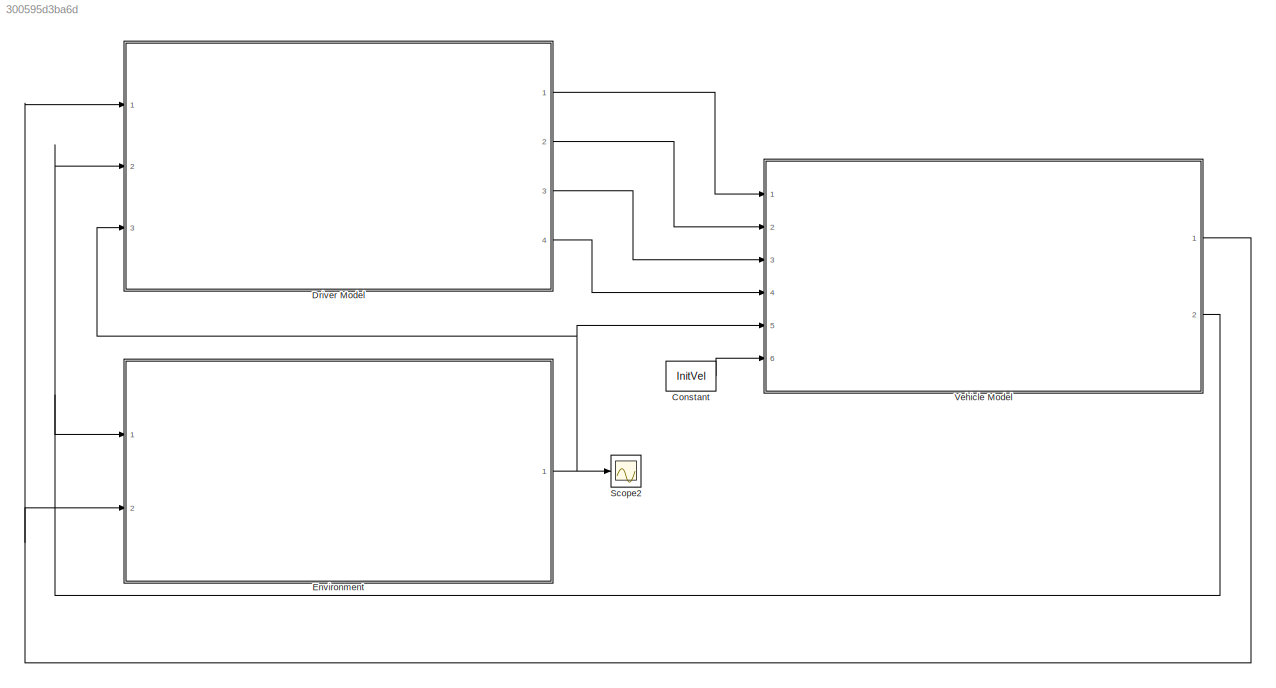
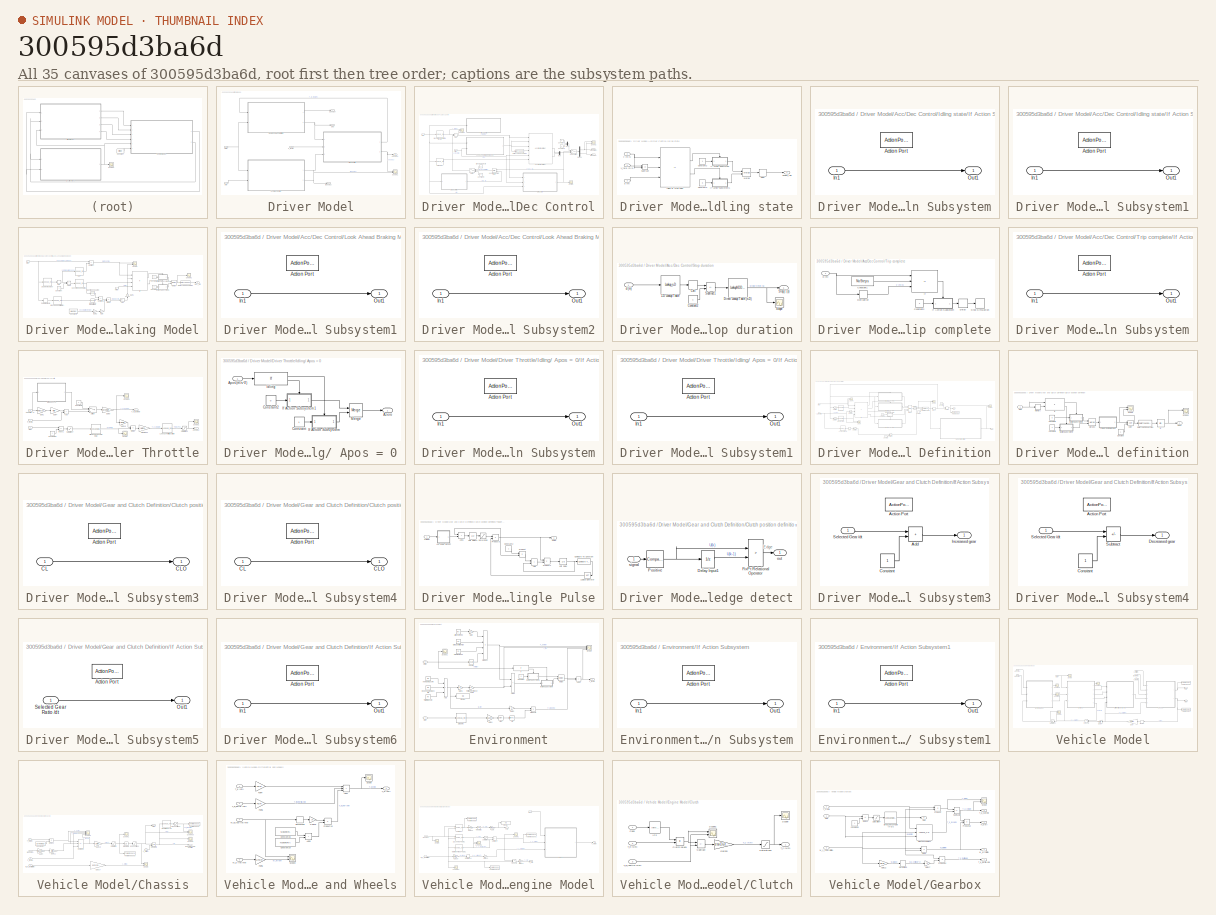
[diagram: thumbnail index - all 35 canvases of the model, root first then tree order]
MODEL slx_300595d3ba6d
KIND model
CONFIG AbsTol = auto
CONFIG EnableMultiTasking = off
CONFIG FixedStep = 0.1
CONFIG MaxStep = auto
CONFIG MinStep = auto
CONFIG RelTol = 1e-3
CONFIG SampleTimeConstraint = Unconstrained
CONFIG SolverName = FixedStepAuto
CONFIG StartTime = 0.0
CONFIG StopTime = 500
BLOCK [Constant] Constant
  Value = InitVel
BLOCK [SubSystem] Driver Model
  Ports = [3, 4]
  RequestExecContextInheritance = off
BLOCK [SubSystem] Driver Model/Acc//Dec Control
  Ports = [2, 2]
  RequestExecContextInheritance = off
BLOCK [Sum] Driver Model/Acc//Dec Control/Add
  IconShape = rectangular
  Ports = [2, 1]
BLOCK [Outport] Driver Model/Acc//Dec Control/Apos(m//s^2)
BLOCK [Outport] Driver Model/Acc//Dec Control/Bpos (0-1)
  Port = 2
BLOCK [Constant] Driver Model/Acc//Dec Control/Constant
  Value = 0
BLOCK [Constant] Driver Model/Acc//Dec Control/Constant1
  Value = 0
BLOCK [Constant] Driver Model/Acc//Dec Control/Constant4
  NameLocation = top
  Value = 0
BLOCK [Constant] Driver Model/Acc//Dec Control/Creeping Velocity
  NameLocation = top
  Value = 5
BLOCK [DataTypeConversion] Driver Model/Acc//Dec Control/Data Type Conversion
  OutDataTypeStr = double
  RndMeth = Floor
  SaturateOnIntegerOverflow = off
BLOCK [Demux] Driver Model/Acc//Dec Control/Demux
  Outputs = 2
  Ports = [1, 2]
BLOCK [Switch] Driver Model/Acc//Dec Control/Engine Idling
  Criteria = u2 > Threshold
  InputSameDT = off
  SaturateOnIntegerOverflow = off
BLOCK [Lookup_n-D] Driver Model/Acc//Dec Control/Generated Operating Cycle
  BreakpointsForDimension1 = Dist
  BreakpointsForDimension2 = G1Inprpm
  InputPortMap = u0
  InternalRulePriority = Speed
  InterpMethod = Linear Lagrange
  NumberOfTableDimensions = 1
  Ports = [1, 1]
  RndMeth = Simplest
  Table = MaxSpeedProfile
BLOCK [SubSystem] Driver Model/Acc//Dec Control/Idling state
  Ports = [3, 1]
  RequestExecContextInheritance = off
BLOCK [Constant] Driver Model/Acc//Dec Control/Idling state/Constant2
BLOCK [Constant] Driver Model/Acc//Dec Control/Idling state/Constant3
  Value = 0
BLOCK [Delay] Driver Model/Acc//Dec Control/Idling state/Delay
  DelayLength = 1
  InputPortMap = u0
  Ports = [1, 1]
BLOCK [Outport] Driver Model/Acc//Dec Control/Idling state/Engine_Idle
BLOCK [If] Driver Model/Acc//Dec Control/Idling state/Idling at stop point
  IfExpression = u1 == 0 & u2 < 0 & u3 > 10
  NumInputs = 3
  Ports = [3, 2]
BLOCK [SubSystem] Driver Model/Acc//Dec Control/Idling state/If Action Subsystem
  Ports = [1, 1, 0, 0, 0, 0, 0, 1]
  RequestExecContextInheritance = off
  TreatAsAtomicUnit = on
BLOCK [ActionPort] Driver Model/Acc//Dec Control/Idling state/If Action Subsystem/Action Port
  ActionPortLabel = if(u1 == 0 & u2 < 0 & u3 > 10)
BLOCK [Inport] Driver Model/Acc//Dec Control/Idling state/If Action Subsystem/In1
BLOCK [Outport] Driver Model/Acc//Dec Control/Idling state/If Action Subsystem/Out1
BLOCK [SubSystem] Driver Model/Acc//Dec Control/Idling state/If Action Subsystem1
  Ports = [1, 1, 0, 0, 0, 0, 0, 1]
  RequestExecContextInheritance = off
  TreatAsAtomicUnit = on
BLOCK [ActionPort] Driver Model/Acc//Dec Control/Idling state/If Action Subsystem1/Action Port
  ActionPortLabel = else
BLOCK [Inport] Driver Model/Acc//Dec Control/Idling state/If Action Subsystem1/In1
BLOCK [Outport] Driver Model/Acc//Dec Control/Idling state/If Action Subsystem1/Out1
BLOCK [Merge] Driver Model/Acc//Dec Control/Idling state/Merge
  Ports = [2, 1]
BLOCK [Sum] Driver Model/Acc//Dec Control/Idling state/Subtract
  IconShape = rectangular
  Inputs = +-
  Ports = [2, 1]
BLOCK [Inport] Driver Model/Acc//Dec Control/Idling state/d (m)
  Port = 3
BLOCK [Inport] Driver Model/Acc//Dec Control/Idling state/v (m//s)
  Port = 2
BLOCK [Inport] Driver Model/Acc//Dec Control/Idling state/v_targ (m//s)
BLOCK [Reference] Driver Model/Acc//Dec Control/Longitudinal Driver  REF=autolibshared/Longitudinal Driver
  Ports = [6, 3]
  SourceBlock = autolibshared/Longitudinal Driver
  SourceProductBaseCode = PW,MT,UV,VE,VP
  SourceType = Longitudinal Driver
BLOCK [SubSystem] Driver Model/Acc//Dec Control/Look Ahead Braking Model
  Ports = [2, 1]
  RequestExecContextInheritance = off
BLOCK [Abs] Driver Model/Acc//Dec Control/Look Ahead Braking Model/Abs
  SaturateOnIntegerOverflow = off
BLOCK [Sum] Driver Model/Acc//Dec Control/Look Ahead Braking Model/Add3
  IconShape = rectangular
  Ports = [2, 1]
BLOCK [Rounding] Driver Model/Acc//Dec Control/Look Ahead Braking Model/Ceil
  Operator = ceil
BLOCK [Constant] Driver Model/Acc//Dec Control/Look Ahead Braking Model/Constant
BLOCK [Constant] Driver Model/Acc//Dec Control/Look Ahead Braking Model/Constant1
  Value = 0
BLOCK [Constant] Driver Model/Acc//Dec Control/Look Ahead Braking Model/Constant2
BLOCK [Constant] Driver Model/Acc//Dec Control/Look Ahead Braking Model/Constant4
  Value = MaxDec
BLOCK [DataTypeConversion] Driver Model/Acc//Dec Control/Look Ahead Braking Model/Data Type Conversion
  OutDataTypeStr = boolean
  RndMeth = Floor
  SaturateOnIntegerOverflow = off
BLOCK [Outport] Driver Model/Acc//Dec Control/Look Ahead Braking Model/Dec_OR
BLOCK [Product] Driver Model/Acc//Dec Control/Look Ahead Braking Model/Divide
  Inputs = */
  Ports = [2, 1]
BLOCK [Gain] Driver Model/Acc//Dec Control/Look Ahead Braking Model/Gain
  Gain = 2
BLOCK [Gain] Driver Model/Acc//Dec Control/Look Ahead Braking Model/Gain1
  Gain = 1.01
  NameLocation = right
BLOCK [Gain] Driver Model/Acc//Dec Control/Look Ahead Braking Model/Gain2
  Gain = -1
BLOCK [SubSystem] Driver Model/Acc//Dec Control/Look Ahead Braking Model/If Action Subsystem1
  Ports = [1, 1, 0, 0, 0, 0, 0, 1]
  RequestExecContextInheritance = off
  TreatAsAtomicUnit = on
BLOCK [ActionPort] Driver Model/Acc//Dec Control/Look Ahead Braking Model/If Action Subsystem1/Action Port
  ActionPortLabel = else
BLOCK [Inport] Driver Model/Acc//Dec Control/Look Ahead Braking Model/If Action Subsystem1/In1
BLOCK [Outport] Driver Model/Acc//Dec Control/Look Ahead Braking Model/If Action Subsystem1/Out1
BLOCK [SubSystem] Driver Model/Acc//Dec Control/Look Ahead Braking Model/If Action Subsystem2
  Ports = [1, 1, 0, 0, 0, 0, 0, 1]
  RequestExecContextInheritance = off
  TreatAsAtomicUnit = on
BLOCK [ActionPort] Driver Model/Acc//Dec Control/Look Ahead Braking Model/If Action Subsystem2/Action Port
  ActionPortLabel = if(u1 <= u2 & u4 > u3)
BLOCK [Inport] Driver Model/Acc//Dec Control/Look Ahead Braking Model/If Action Subsystem2/In1
BLOCK [Outport] Driver Model/Acc//Dec Control/Look Ahead Braking Model/If Action Subsystem2/Out1
BLOCK [If] Driver Model/Acc//Dec Control/Look Ahead Braking Model/If1
  IfExpression = u1 <= u2 & u4 > u3
  NumInputs = 4
  Ports = [4, 2]
BLOCK [Math] Driver Model/Acc//Dec Control/Look Ahead Braking Model/Magnitude Squared
  Operator = square
  Ports = [1, 1]
BLOCK [Math] Driver Model/Acc//Dec Control/Look Ahead Braking Model/Magnitude Squared1
  Operator = square
  Ports = [1, 1]
BLOCK [Lookup_n-D] Driver Model/Acc//Dec Control/Look Ahead Braking Model/Max Speed Profile (m//s)
  BreakpointsForDimension1 = Dist
  BreakpointsForDimension2 = G1Inprpm
  InputPortMap = u0
  InternalRulePriority = Speed
  InterpMethod = Linear Lagrange
  NumberOfTableDimensions = 1
  Ports = [1, 1]
  RndMeth = Simplest
  Table = MaxSpeedProfile
BLOCK [Merge] Driver Model/Acc//Dec Control/Look Ahead Braking Model/Merge
  Ports = [2, 1]
BLOCK [Lookup_n-D] Driver Model/Acc//Dec Control/Look Ahead Braking Model/SCP
  BreakpointsForDimension1 = SegNo
  BreakpointsForDimension2 = G1Inprpm
  InputPortMap = u0
  InternalRulePriority = Speed
  InterpMethod = Linear Lagrange
  NumberOfTableDimensions = 1
  Ports = [1, 1]
  RndMeth = Simplest
  Table = CovDist
BLOCK [Scope] Driver Model/Acc//Dec Control/Look Ahead Braking Model/Scope
  Floating = off
  NumInputPorts = 2
  Ports = [2]
  ScopeSpecificationString = Simulink.scopes.TimeScopeBlockCfg('CurrentConfiguration', extmgr.ConfigurationSet(extmgr.Configuration('Core','General UI',true),extmgr.Configuration('Core','Source UI',true),extmgr.Configuration('Sources','WiredSimulink',true,'DataLoggingVariableName','ScopeData3'),extmgr.Configuration('Visuals','Time Domain',true,'SerializedDisplays',{struct('MinYLimReal','-187.49386','MaxYLimReal','1687.44478',...<+1470ch>
BLOCK [Scope] Driver Model/Acc//Dec Control/Look Ahead Braking Model/Scope2
  Floating = off
  NumInputPorts = 1
  Ports = [1]
  ScopeSpecificationString = Simulink.scopes.TimeScopeBlockCfg('CurrentConfiguration', extmgr.ConfigurationSet(extmgr.Configuration('Core','General UI',true),extmgr.Configuration('Core','Source UI',true),extmgr.Configuration('Sources','WiredSimulink',true,'DataLoggingVariableName','ScopeData33'),extmgr.Configuration('Visuals','Time Domain',true,'SerializedDisplays',{struct('MinYLimReal','-0.09268','MaxYLimReal','1.05143','YLa...<+1436ch>
BLOCK [Lookup_n-D] Driver Model/Acc//Dec Control/Look Ahead Braking Model/Segment number
  BreakpointsForDimension1 = CovDist
  BreakpointsForDimension2 = G1Inprpm
  InputPortMap = u0
  InternalRulePriority = Speed
  InterpMethod = Linear Lagrange
  NumberOfTableDimensions = 1
  Ports = [1, 1]
  RndMeth = Simplest
  Table = SegNo
BLOCK [Sum] Driver Model/Acc//Dec Control/Look Ahead Braking Model/Subtract
  IconShape = rectangular
  Inputs = -+
  Ports = [2, 1]
BLOCK [Sum] Driver Model/Acc//Dec Control/Look Ahead Braking Model/Subtract1
  IconShape = rectangular
  Inputs = +-
  Ports = [2, 1]
BLOCK [ZeroOrderHold] Driver Model/Acc//Dec Control/Look Ahead Braking Model/Zero-Order Hold
  SampleTime = -1
BLOCK [Inport] Driver Model/Acc//Dec Control/Look Ahead Braking Model/d (m)
BLOCK [Lookup_n-D] Driver Model/Acc//Dec Control/Look Ahead Braking Model/upcoming speed (m//s)
  BreakpointsForDimension1 = SegNo
  BreakpointsForDimension2 = G1Inprpm
  InputPortMap = u0
  InternalRulePriority = Speed
  InterpMethod = Linear Lagrange
  NumberOfTableDimensions = 1
  Ports = [1, 1]
  RndMeth = Simplest
  Table = SegSPLatinmps
BLOCK [Inport] Driver Model/Acc//Dec Control/Look Ahead Braking Model/v (m//s)
  Port = 2
BLOCK [Mux] Driver Model/Acc//Dec Control/Mux
  DisplayOption = bar
  Inputs = 2
  Ports = [2, 1]
BLOCK [Mux] Driver Model/Acc//Dec Control/Mux1
  DisplayOption = bar
  Inputs = 2
  Ports = [2, 1]
BLOCK [Scope] Driver Model/Acc//Dec Control/Scope
  Floating = off
  NumInputPorts = 1
  Ports = [1]
  ScopeSpecificationString = Simulink.scopes.TimeScopeBlockCfg('CurrentConfiguration', extmgr.ConfigurationSet(extmgr.Configuration('Core','General UI',true),extmgr.Configuration('Core','Source UI',true),extmgr.Configuration('Sources','WiredSimulink',true,'DataLoggingVariableName','ScopeData2'),extmgr.Configuration('Visuals','Time Domain',true,'SerializedDisplays',{struct('MinYLimReal','-0.125','MaxYLimReal','1.125','YLabelRe...<+1429ch>
BLOCK [Scope] Driver Model/Acc//Dec Control/Scope1
  Floating = off
  NumInputPorts = 2
  Ports = [2]
  ScopeSpecificationString = Simulink.scopes.TimeScopeBlockCfg('CurrentConfiguration', extmgr.ConfigurationSet(extmgr.Configuration('Core','General UI',true),extmgr.Configuration('Core','Source UI',true),extmgr.Configuration('Sources','WiredSimulink',true,'DataLoggingVariableName','ScopeData1'),extmgr.Configuration('Visuals','Time Domain',true,'SerializedDisplays',{struct('MinYLimReal','-0.125','MaxYLimReal','1.125','YLabelRe...<+1482ch>
BLOCK [Scope] Driver Model/Acc//Dec Control/Scope2
  Floating = off
  NumInputPorts = 2
  Ports = [2]
  ScopeSpecificationString = Simulink.scopes.TimeScopeBlockCfg('CurrentConfiguration', extmgr.ConfigurationSet(extmgr.Configuration('Core','General UI',true),extmgr.Configuration('Core','Source UI',true),extmgr.Configuration('Sources','WiredSimulink',true,'DataLoggingVariableName','ScopeData1'),extmgr.Configuration('Visuals','Time Domain',true,'SerializedDisplays',{struct('MinYLimReal','13.66293','MaxYLimReal','16.06226','YLa...<+1506ch>
BLOCK [Lookup_n-D] Driver Model/Acc//Dec Control/Slope (%)
  BreakpointsForDimension1 = Dist
  InputPortMap = u0
  InternalRulePriority = Speed
  NumberOfTableDimensions = 1
  Ports = [1, 1]
  RndMeth = Simplest
  Table = IntpSlope
BLOCK [SubSystem] Driver Model/Acc//Dec Control/Stop duration
  Ports = [1, 1]
  RequestExecContextInheritance = off
BLOCK [Lookup_n-D] Driver Model/Acc//Dec Control/Stop duration/1-D Lookup Table
  BreakpointsForDimension1 = Stoptimes(:,1)
  InputPortMap = u0
  InternalRulePriority = Speed
  NumberOfTableDimensions = 1
  Ports = [1, 1]
  RndMeth = Simplest
  Table = 1:length(Stoptimes)
BLOCK [Rounding] Driver Model/Acc//Dec Control/Stop duration/Ceil
  Operator = ceil
BLOCK [Constant] Driver Model/Acc//Dec Control/Stop duration/Constant2
BLOCK [LookupNDDirect] Driver Model/Acc//Dec Control/Stop duration/Direct Lookup Table (n-D)
  NumberOfTableDimensions = 1
  Ports = [1, 1]
  Table = Stoptimes(:,2)
BLOCK [Scope] Driver Model/Acc//Dec Control/Stop duration/Scope
  Floating = off
  NumInputPorts = 1
  Ports = [1]
  ScopeSpecificationString = Simulink.scopes.TimeScopeBlockCfg('CurrentConfiguration', extmgr.ConfigurationSet(extmgr.Configuration('Core','General UI',true),extmgr.Configuration('Core','Source UI',true),extmgr.Configuration('Sources','WiredSimulink',true,'DataLoggingVariableName','ScopeData1'),extmgr.Configuration('Visuals','Time Domain',true,'SerializedDisplays',{struct('MinYLimReal','4.00000','MaxYLimReal','6.00000','YLabe...<+1399ch>
BLOCK [Outport] Driver Model/Acc//Dec Control/Stop duration/Stop_t (s)
BLOCK [Sum] Driver Model/Acc//Dec Control/Stop duration/Subtract1
  IconShape = rectangular
  Inputs = +-
  Ports = [2, 1]
BLOCK [Inport] Driver Model/Acc//Dec Control/Stop duration/d (m)
BLOCK [Switch] Driver Model/Acc//Dec Control/Switch
  Criteria = u2 > Threshold
  InputSameDT = off
  NameLocation = top
  SaturateOnIntegerOverflow = off
BLOCK [SubSystem] Driver Model/Acc//Dec Control/Trip complete
  Ports = [1]
  RequestExecContextInheritance = off
BLOCK [Constant] Driver Model/Acc//Dec Control/Trip complete/Constant1
  Value = NoSteps
BLOCK [Constant] Driver Model/Acc//Dec Control/Trip complete/Constant2
BLOCK [Delay] Driver Model/Acc//Dec Control/Trip complete/Delay
  DelayLength = 1
  InputPortMap = u0
  Ports = [1, 1]
BLOCK [Derivative] Driver Model/Acc//Dec Control/Trip complete/Derivative
BLOCK [If] Driver Model/Acc//Dec Control/Trip complete/If
  IfExpression = u1 > u2 & u3 ==0
  NumInputs = 3
  Ports = [3, 1]
  ShowElse = off
BLOCK [SubSystem] Driver Model/Acc//Dec Control/Trip complete/If Action Subsystem
  Ports = [1, 1, 0, 0, 0, 0, 0, 1]
  RequestExecContextInheritance = off
  TreatAsAtomicUnit = on
BLOCK [ActionPort] Driver Model/Acc//Dec Control/Trip complete/If Action Subsystem/Action Port
  ActionPortLabel = if(u1 > u2 & u3 ==0)
BLOCK [Inport] Driver Model/Acc//Dec Control/Trip complete/If Action Subsystem/In1
BLOCK [Outport] Driver Model/Acc//Dec Control/Trip complete/If Action Subsystem/Out1
BLOCK [Stop] Driver Model/Acc//Dec Control/Trip complete/Stop Simulation
BLOCK [Inport] Driver Model/Acc//Dec Control/Trip complete/d (m)
BLOCK [VariableTransportDelay] Driver Model/Acc//Dec Control/Vehicle temporary stop
  MaximumDelay = 10
  Ports = [2, 1]
  VariableDelayType = Variable transport delay
BLOCK [Inport] Driver Model/Acc//Dec Control/d (m)
  Port = 2
BLOCK [Inport] Driver Model/Acc//Dec Control/v (m//s)
BLOCK [Outport] Driver Model/Apos(0-1)
  Port = 3
BLOCK [Outport] Driver Model/Bpos (0-1)
  Port = 4
BLOCK [Outport] Driver Model/Cpos (1-0)
BLOCK [SubSystem] Driver Model/Driver Throttle
  Ports = [3, 2]
  RequestExecContextInheritance = off
BLOCK [Sum] Driver Model/Driver Throttle/Add
  IconShape = rectangular
  Ports = [2, 1]
BLOCK [Outport] Driver Model/Driver Throttle/Apos (0-1)
  Port = 2
BLOCK [Inport] Driver Model/Driver Throttle/Apos(m//s^2)
  Port = 3
BLOCK [Constant] Driver Model/Driver Throttle/Constant1
  Value = 0
BLOCK [Constant] Driver Model/Driver Throttle/Constant20
BLOCK [LookupNDDirect] Driver Model/Driver Throttle/Direct Lookup Table (n-D)2
  NumberOfTableDimensions = 1
  Ports = [1, 1]
  Table = GRa
BLOCK [Product] Driver Model/Driver Throttle/Divide
  Inputs = */
  Ports = [2, 1]
BLOCK [Inport] Driver Model/Driver Throttle/F_res (N)
  Port = 2
BLOCK [Inport] Driver Model/Driver Throttle/GNo
BLOCK [Gain] Driver Model/Driver Throttle/Gain1
  Gain = MaxAcc
BLOCK [Gain] Driver Model/Driver Throttle/Gain10
  Gain = 1/FDR
BLOCK [Gain] Driver Model/Driver Throttle/Gain4
  Gain = Mtot
BLOCK [Gain] Driver Model/Driver Throttle/Gain9
  Gain = DynRolRad
BLOCK [SubSystem] Driver Model/Driver Throttle/Idling// Apos = 0
  Ports = [1, 1]
  RequestExecContextInheritance = off
BLOCK [Inport] Driver Model/Driver Throttle/Idling// Apos = 0/Apos(m//s^2)
BLOCK [Outport] Driver Model/Driver Throttle/Idling// Apos = 0/Azero
BLOCK [Constant] Driver Model/Driver Throttle/Idling// Apos = 0/Constant
BLOCK [Constant] Driver Model/Driver Throttle/Idling// Apos = 0/Constant2
  Value = 0
BLOCK [If] Driver Model/Driver Throttle/Idling// Apos = 0/Idling
  IfExpression = u1 == 0
  Ports = [1, 2]
BLOCK [SubSystem] Driver Model/Driver Throttle/Idling// Apos = 0/If Action Subsystem
  Ports = [1, 1, 0, 0, 0, 0, 0, 1]
  RequestExecContextInheritance = off
  TreatAsAtomicUnit = on
BLOCK [ActionPort] Driver Model/Driver Throttle/Idling// Apos = 0/If Action Subsystem/Action Port
  ActionPortLabel = if(u1 == 0)
BLOCK [Inport] Driver Model/Driver Throttle/Idling// Apos = 0/If Action Subsystem/In1
BLOCK [Outport] Driver Model/Driver Throttle/Idling// Apos = 0/If Action Subsystem/Out1
BLOCK [SubSystem] Driver Model/Driver Throttle/Idling// Apos = 0/If Action Subsystem1
  Ports = [1, 1, 0, 0, 0, 0, 0, 1]
  RequestExecContextInheritance = off
  TreatAsAtomicUnit = on
BLOCK [ActionPort] Driver Model/Driver Throttle/Idling// Apos = 0/If Action Subsystem1/Action Port
  ActionPortLabel = else
BLOCK [Inport] Driver Model/Driver Throttle/Idling// Apos = 0/If Action Subsystem1/In1
BLOCK [Outport] Driver Model/Driver Throttle/Idling// Apos = 0/If Action Subsystem1/Out1
BLOCK [Merge] Driver Model/Driver Throttle/Idling// Apos = 0/Merge
  Ports = [2, 1]
BLOCK [Sum] Driver Model/Driver Throttle/Index1
  IconShape = rectangular
  Inputs = +-
  Ports = [2, 1]
BLOCK [Lookup_n-D] Driver Model/Driver Throttle/Lookup Throttle position
  BreakpointsForDimension1 = MaxTorValThrot
  InputPortMap = u0
  InternalRulePriority = Speed
  NumberOfTableDimensions = 1
  Ports = [1, 1]
  RndMeth = Simplest
  Table = ThrotPos
BLOCK [Saturate] Driver Model/Driver Throttle/Saturation2
  LowerLimit = 0
  UpperLimit = 1
BLOCK [Saturate] Driver Model/Driver Throttle/Saturation7
  LowerLimit = 0
  UpperLimit = inf
BLOCK [Scope] Driver Model/Driver Throttle/Scope
  Floating = off
  NumInputPorts = 1
  Ports = [1]
  ScopeSpecificationString = Simulink.scopes.TimeScopeBlockCfg('CurrentConfiguration', extmgr.ConfigurationSet(extmgr.Configuration('Core','General UI',true),extmgr.Configuration('Core','Source UI',true),extmgr.Configuration('Sources','WiredSimulink',true,'DataLoggingVariableName','ScopeData6'),extmgr.Configuration('Visuals','Time Domain',true,'SerializedDisplays',{struct('MinYLimReal','0.8275','MaxYLimReal','7.3525','YLabelR...<+1386ch>
BLOCK [Scope] Driver Model/Driver Throttle/Scope1
  Floating = off
  NumInputPorts = 1
  Ports = [1]
  ScopeSpecificationString = Simulink.scopes.TimeScopeBlockCfg('CurrentConfiguration', extmgr.ConfigurationSet(extmgr.Configuration('Core','General UI',true),extmgr.Configuration('Core','Source UI',true),extmgr.Configuration('Sources','WiredSimulink',true,'DataLoggingVariableName','ScopeData5'),extmgr.Configuration('Visuals','Time Domain',true,'SerializedDisplays',{struct('MinYLimReal','-0.02647','MaxYLimReal','1.03368','YLab...<+1416ch>
BLOCK [Scope] Driver Model/Driver Throttle/Scope3
  Floating = off
  NumInputPorts = 1
  Ports = [1]
  ScopeSpecificationString = Simulink.scopes.TimeScopeBlockCfg('CurrentConfiguration', extmgr.ConfigurationSet(extmgr.Configuration('Core','General UI',true),extmgr.Configuration('Core','Source UI',true),extmgr.Configuration('Sources','WiredSimulink',true,'DataLoggingVariableName','ScopeData5'),extmgr.Configuration('Visuals','Time Domain',true,'SerializedDisplays',{struct('MinYLimReal','-324.92281','MaxYLimReal','2924.30529',...<+1416ch>
BLOCK [Switch] Driver Model/Driver Throttle/Switch
  Criteria = u2 > Threshold
  InputSameDT = off
  SaturateOnIntegerOverflow = off
BLOCK [Outport] Driver Model/Driver Throttle/T_w_req (Nm)
BLOCK [Gain] Driver Model/Driver Throttle/etaClutch2
  Gain = 1/etaClutch
BLOCK [Inport] Driver Model/F_res (N)
  Port = 3
BLOCK [Outport] Driver Model/GNo
  Port = 2
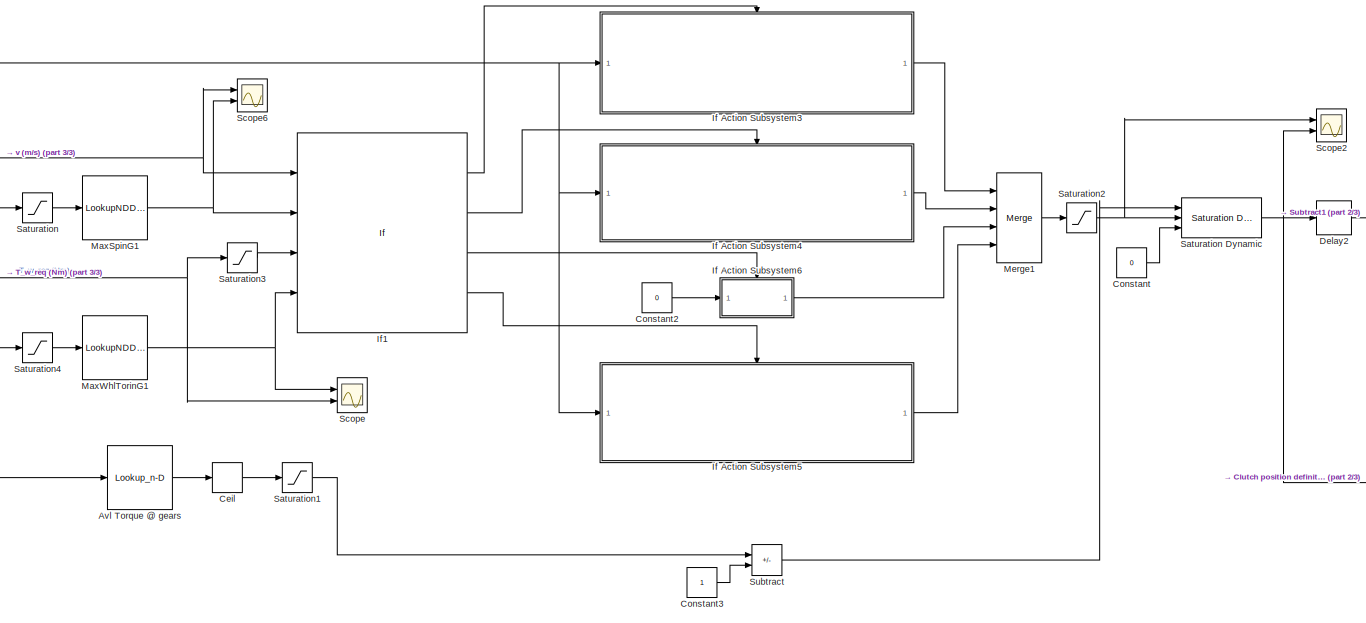
[diagram: Driver Model/Gear and Clutch Definition - part 1/3, center side, full height]
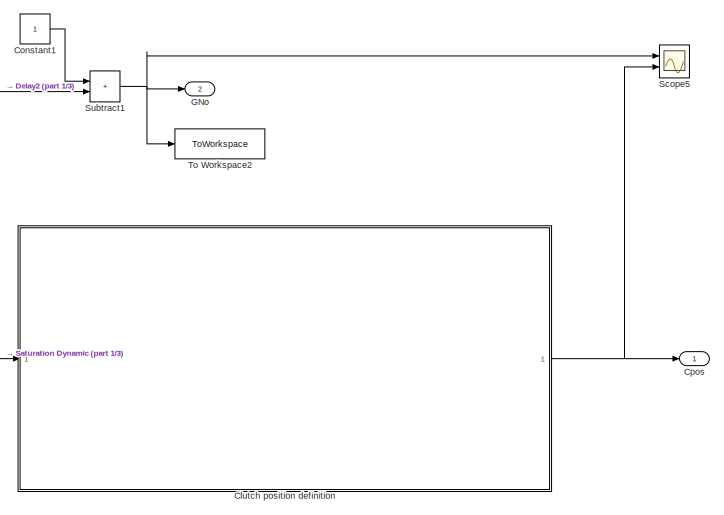
[diagram: Driver Model/Gear and Clutch Definition - part 2/3, middle right region]
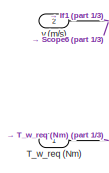
[diagram: Driver Model/Gear and Clutch Definition - part 3/3, middle left region]
BLOCK [SubSystem] Driver Model/Gear and Clutch Definition
  Ports = [2, 2]
  RequestExecContextInheritance = off
BLOCK [Lookup_n-D] Driver Model/Gear and Clutch Definition/Avl Torque @ gears
  BreakpointsForDimension1 = flip(MaxWhlTorinG)
  InputPortMap = u0
  InternalRulePriority = Speed
  NumberOfTableDimensions = 1
  Ports = [1, 1]
  RndMeth = Simplest
  Table = flip(GNo)
BLOCK [Rounding] Driver Model/Gear and Clutch Definition/Ceil
  Operator = ceil
BLOCK [SubSystem] Driver Model/Gear and Clutch Definition/Clutch position definition
  Ports = [1, 1]
  RequestExecContextInheritance = off
BLOCK [Constant] Driver Model/Gear and Clutch Definition/Clutch position definition/Constant
BLOCK [Constant] Driver Model/Gear and Clutch Definition/Clutch position definition/Constant2
  Value = 0
BLOCK [Constant] Driver Model/Gear and Clutch Definition/Clutch position definition/Constant3
BLOCK [Outport] Driver Model/Gear and Clutch Definition/Clutch position definition/Cpos
BLOCK [DataTypeConversion] Driver Model/Gear and Clutch Definition/Clutch position definition/Data Type Conversion
  OutDataTypeStr = double
  RndMeth = Floor
  SaturateOnIntegerOverflow = off
BLOCK [Inport] Driver Model/Gear and Clutch Definition/Clutch position definition/GNo
BLOCK [InitialCondition] Driver Model/Gear and Clutch Definition/Clutch position definition/IC
  Value = 0
BLOCK [SubSystem] Driver Model/Gear and Clutch Definition/Clutch position definition/If Action Subsystem3
  Ports = [1, 1, 0, 0, 0, 0, 0, 1]
  RequestExecContextInheritance = off
  TreatAsAtomicUnit = on
BLOCK [ActionPort] Driver Model/Gear and Clutch Definition/Clutch position definition/If Action Subsystem3/Action Port
  ActionPortLabel = if(u1 == u2)
BLOCK [Inport] Driver Model/Gear and Clutch Definition/Clutch position definition/If Action Subsystem3/CL
BLOCK [Outport] Driver Model/Gear and Clutch Definition/Clutch position definition/If Action Subsystem3/CLO
BLOCK [SubSystem] Driver Model/Gear and Clutch Definition/Clutch position definition/If Action Subsystem4
  Ports = [1, 1, 0, 0, 0, 0, 0, 1]
  RequestExecContextInheritance = off
  TreatAsAtomicUnit = on
BLOCK [ActionPort] Driver Model/Gear and Clutch Definition/Clutch position definition/If Action Subsystem4/Action Port
  ActionPortLabel = else
BLOCK [Inport] Driver Model/Gear and Clutch Definition/Clutch position definition/If Action Subsystem4/CL
BLOCK [Outport] Driver Model/Gear and Clutch Definition/Clutch position definition/If Action Subsystem4/CLO
BLOCK [If] Driver Model/Gear and Clutch Definition/Clutch position definition/If1
  IfExpression = u1 == u2
  NumInputs = 2
  Ports = [2, 2]
BLOCK [Memory] Driver Model/Gear and Clutch Definition/Clutch position definition/Memory
BLOCK [Merge] Driver Model/Gear and Clutch Definition/Clutch position definition/Merge2
  Ports = [2, 1]
BLOCK [Scope] Driver Model/Gear and Clutch Definition/Clutch position definition/Scope
  Floating = off
  NumInputPorts = 2
  Ports = [2]
  ScopeSpecificationString = Simulink.scopes.TimeScopeBlockCfg('CurrentConfiguration', extmgr.ConfigurationSet(extmgr.Configuration('Core','General UI',true),extmgr.Configuration('Core','Source UI',true),extmgr.Configuration('Sources','WiredSimulink',true,'DataLoggingVariableName','ScopeData4'),extmgr.Configuration('Visuals','Time Domain',true,'SerializedDisplays',{struct('MinYLimReal','-0.125','MaxYLimReal','1.125','YLabelRe...<+1419ch>
BLOCK [Scope] Driver Model/Gear and Clutch Definition/Clutch position definition/Scope1
  Floating = off
  NumInputPorts = 2
  Ports = [2]
  ScopeSpecificationString = Simulink.scopes.TimeScopeBlockCfg('CurrentConfiguration', extmgr.ConfigurationSet(extmgr.Configuration('Core','General UI',true),extmgr.Configuration('Core','Source UI',true),extmgr.Configuration('Sources','WiredSimulink',true,'DataLoggingVariableName','ScopeData2'),extmgr.Configuration('Visuals','Time Domain',true,'SerializedDisplays',{struct('MinYLimReal','-0.07165','MaxYLimReal','1.01137','YLab...<+1491ch>
BLOCK [SubSystem] Driver Model/Gear and Clutch Definition/Clutch position definition/Triggered Single Pulse
  Ports = [1, 1]
  RequestExecContextInheritance = off
  TreatAsAtomicUnit = on
BLOCK [SubSystem] Driver Model/Gear and Clutch Definition/Clutch position definition/Triggered Single Pulse/+ve edge detect
  Ports = [1, 1]
  RequestExecContextInheritance = off
BLOCK [UnitDelay] Driver Model/Gear and Clutch Definition/Clutch position definition/Triggered Single Pulse/+ve edge detect/Delay Input1
  Description = Store in Global RAM
  DisableCoverage = on
  HasFrameUpgradeWarning = on
  SampleTime = -1
BLOCK [RelationalOperator] Driver Model/Gear and Clutch Definition/Clutch position definition/Triggered Single Pulse/+ve edge detect/FixPt Relational Operator
  InputSameDT = off
  Operator = >
  OutDataTypeStr = fixdt(0, 8)
  Ports = [2, 1]
  ZeroCross = off
BLOCK [Reference] Driver Model/Gear and Clutch Definition/Clutch position definition/Triggered Single Pulse/+ve edge detect/Positive  REF=simulink/Logic and Bit
Operations/Compare
To Zero
  Ports = [1, 1]
  SourceBlock = simulink/Logic and Bit\nOperations/Compare\nTo Zero
  SourceProductBaseCode = SL
  SourceType = Compare To Zero
BLOCK [Outport] Driver Model/Gear and Clutch Definition/Clutch position definition/Triggered Single Pulse/+ve edge detect/out
BLOCK [Inport] Driver Model/Gear and Clutch Definition/Clutch position definition/Triggered Single Pulse/+ve edge detect/signal
BLOCK [Sum] Driver Model/Gear and Clutch Definition/Clutch position definition/Triggered Single Pulse/Add
  IconShape = rectangular
  Ports = [2, 1]
BLOCK [Sum] Driver Model/Gear and Clutch Definition/Clutch position definition/Triggered Single Pulse/Add1
  IconShape = rectangular
  Ports = [2, 1]
BLOCK [Reference] Driver Model/Gear and Clutch Definition/Clutch position definition/Triggered Single Pulse/Compare To Constant  REF=simulink/Logic and Bit
Operations/Compare
To Constant
  Ports = [1, 1]
  SourceBlock = simulink/Logic and Bit\nOperations/Compare\nTo Constant
  SourceProductBaseCode = SL
  SourceType = Compare To Constant
BLOCK [Constant] Driver Model/Gear and Clutch Definition/Clutch position definition/Triggered Single Pulse/Constant2
BLOCK [Logic] Driver Model/Gear and Clutch Definition/Clutch position definition/Triggered Single Pulse/Logical Operator
  AllPortsSameDT = off
  Operator = NOT
  OutDataTypeStr = boolean
  Ports = [1, 1]
BLOCK [Product] Driver Model/Gear and Clutch Definition/Clutch position definition/Triggered Single Pulse/Product
  Ports = [2, 1]
  RndMeth = Zero
BLOCK [Product] Driver Model/Gear and Clutch Definition/Clutch position definition/Triggered Single Pulse/Product1
  Ports = [2, 1]
  RndMeth = Zero
BLOCK [Product] Driver Model/Gear and Clutch Definition/Clutch position definition/Triggered Single Pulse/Product3
  Ports = [2, 1]
  RndMeth = Zero
BLOCK [Outport] Driver Model/Gear and Clutch Definition/Clutch position definition/Triggered Single Pulse/Pulse
BLOCK [Saturate] Driver Model/Gear and Clutch Definition/Clutch position definition/Triggered Single Pulse/Saturation
  LowerLimit = 0
  UpperLimit = 1
BLOCK [Inport] Driver Model/Gear and Clutch Definition/Clutch position definition/Triggered Single Pulse/Trigger
BLOCK [UnitDelay] Driver Model/Gear and Clutch Definition/Clutch position definition/Triggered Single Pulse/Unit Delay
  HasFrameUpgradeWarning = on
  SampleTime = -1
BLOCK [UnitDelay] Driver Model/Gear and Clutch Definition/Clutch position definition/Triggered Single Pulse/Unit Delay1
  HasFrameUpgradeWarning = on
  SampleTime = -1
BLOCK [Logic] Driver Model/Gear and Clutch Definition/Clutch position definition/XOR
  AllPortsSameDT = off
  IconShape = distinctive
  Operator = XOR
  OutDataTypeStr = boolean
  Ports = [2, 1]
BLOCK [Constant] Driver Model/Gear and Clutch Definition/Constant
  Value = 0
BLOCK [Constant] Driver Model/Gear and Clutch Definition/Constant1
BLOCK [Constant] Driver Model/Gear and Clutch Definition/Constant2
  Value = 0
BLOCK [Constant] Driver Model/Gear and Clutch Definition/Constant3
BLOCK [Outport] Driver Model/Gear and Clutch Definition/Cpos
BLOCK [Delay] Driver Model/Gear and Clutch Definition/Delay2
  DelayLength = 1
  InputPortMap = u0
  Ports = [1, 1]
BLOCK [Outport] Driver Model/Gear and Clutch Definition/GNo
  Port = 2
BLOCK [SubSystem] Driver Model/Gear and Clutch Definition/If Action Subsystem3
  Ports = [1, 1, 0, 0, 0, 0, 0, 1]
  RequestExecContextInheritance = off
  TreatAsAtomicUnit = on
BLOCK [ActionPort] Driver Model/Gear and Clutch Definition/If Action Subsystem3/Action Port
  ActionPortLabel = if(u1 >= u2)
BLOCK [Sum] Driver Model/Gear and Clutch Definition/If Action Subsystem3/Add
  IconShape = rectangular
  Ports = [2, 1]
BLOCK [Constant] Driver Model/Gear and Clutch Definition/If Action Subsystem3/Constant
BLOCK [Outport] Driver Model/Gear and Clutch Definition/If Action Subsystem3/Increased gear
BLOCK [Inport] Driver Model/Gear and Clutch Definition/If Action Subsystem3/Selected Gear //dt
BLOCK [SubSystem] Driver Model/Gear and Clutch Definition/If Action Subsystem4
  Ports = [1, 1, 0, 0, 0, 0, 0, 1]
  RequestExecContextInheritance = off
  TreatAsAtomicUnit = on
BLOCK [ActionPort] Driver Model/Gear and Clutch Definition/If Action Subsystem4/Action Port
  ActionPortLabel = elseif(u3 >= u4)
BLOCK [Constant] Driver Model/Gear and Clutch Definition/If Action Subsystem4/Constant
BLOCK [Outport] Driver Model/Gear and Clutch Definition/If Action Subsystem4/Decreased gear
BLOCK [Inport] Driver Model/Gear and Clutch Definition/If Action Subsystem4/Selected Gear //dt
BLOCK [Sum] Driver Model/Gear and Clutch Definition/If Action Subsystem4/Subtract
  IconShape = rectangular
  Inputs = +-
  Ports = [2, 1]
BLOCK [SubSystem] Driver Model/Gear and Clutch Definition/If Action Subsystem5
  Ports = [1, 1, 0, 0, 0, 0, 0, 1]
  RequestExecContextInheritance = off
  TreatAsAtomicUnit = on
BLOCK [ActionPort] Driver Model/Gear and Clutch Definition/If Action Subsystem5/Action Port
  ActionPortLabel = else
BLOCK [Outport] Driver Model/Gear and Clutch Definition/If Action Subsystem5/Out1
BLOCK [Inport] Driver Model/Gear and Clutch Definition/If Action Subsystem5/Selected Gear Ratio //dt
BLOCK [SubSystem] Driver Model/Gear and Clutch Definition/If Action Subsystem6
  Ports = [1, 1, 0, 0, 0, 0, 0, 1]
  RequestExecContextInheritance = off
  TreatAsAtomicUnit = on
BLOCK [ActionPort] Driver Model/Gear and Clutch Definition/If Action Subsystem6/Action Port
  ActionPortLabel = elseif(u1 == 0)
BLOCK [Inport] Driver Model/Gear and Clutch Definition/If Action Subsystem6/In1
BLOCK [Outport] Driver Model/Gear and Clutch Definition/If Action Subsystem6/Out1
BLOCK [If] Driver Model/Gear and Clutch Definition/If1
  ElseIfExpressions = u3 >= u4,u1 == 0
  IfExpression = u1 >= u2
  NumInputs = 4
  Ports = [4, 4]
BLOCK [LookupNDDirect] Driver Model/Gear and Clutch Definition/MaxSpinG1
  NumberOfTableDimensions = 1
  Ports = [1, 1]
  Table = MaxSpinG
BLOCK [LookupNDDirect] Driver Model/Gear and Clutch Definition/MaxWhlTorinG1
  NumberOfTableDimensions = 1
  Ports = [1, 1]
  Table = MaxWhlTorinG
BLOCK [Merge] Driver Model/Gear and Clutch Definition/Merge1
  Inputs = 4
  Ports = [4, 1]
BLOCK [Saturate] Driver Model/Gear and Clutch Definition/Saturation
  LowerLimit = 0
  UpperLimit = inf
BLOCK [Reference] Driver Model/Gear and Clutch Definition/Saturation Dynamic  REF=simulink/Discontinuities/Saturation
Dynamic
  Ports = [3, 1]
  SourceBlock = simulink/Discontinuities/Saturation\nDynamic
  SourceProductBaseCode = SL
  SourceType = Saturation Dynamic
BLOCK [Saturate] Driver Model/Gear and Clutch Definition/Saturation1
  LowerLimit = 0
  UpperLimit = max(GNo)
BLOCK [Saturate] Driver Model/Gear and Clutch Definition/Saturation2
  LowerLimit = 0
  UpperLimit = max(GNo)-1
BLOCK [Saturate] Driver Model/Gear and Clutch Definition/Saturation3
  LowerLimit = 0
  UpperLimit = inf
BLOCK [Saturate] Driver Model/Gear and Clutch Definition/Saturation4
  LowerLimit = 0
  UpperLimit = inf
BLOCK [Scope] Driver Model/Gear and Clutch Definition/Scope
  Floating = off
  NumInputPorts = 2
  Ports = [2]
  ScopeSpecificationString = Simulink.scopes.TimeScopeBlockCfg('CurrentConfiguration', extmgr.ConfigurationSet(extmgr.Configuration('Core','General UI',true),extmgr.Configuration('Core','Source UI',true),extmgr.Configuration('Sources','WiredSimulink',true,'DataLoggingVariableName','ScopeData13'),extmgr.Configuration('Visuals','Time Domain',true,'SerializedDisplays',{struct('MinYLimReal','-3170.574','MaxYLimReal','28535.166','...<+1541ch>
BLOCK [Scope] Driver Model/Gear and Clutch Definition/Scope2
  Floating = off
  NumInputPorts = 2
  Ports = [2]
  ScopeSpecificationString = Simulink.scopes.TimeScopeBlockCfg('CurrentConfiguration', extmgr.ConfigurationSet(extmgr.Configuration('Core','General UI',true),extmgr.Configuration('Core','Source UI',true),extmgr.Configuration('Sources','WiredSimulink',true,'DataLoggingVariableName','ScopeData1'),extmgr.Configuration('Visuals','Time Domain',true,'SerializedDisplays',{struct('MinYLimReal','-0.375','MaxYLimReal','3.375','YLabelRe...<+1479ch>
BLOCK [Scope] Driver Model/Gear and Clutch Definition/Scope5
  Floating = off
  NumInputPorts = 2
  Ports = [2]
  ScopeSpecificationString = Simulink.scopes.TimeScopeBlockCfg('CurrentConfiguration', extmgr.ConfigurationSet(extmgr.Configuration('Core','General UI',true),extmgr.Configuration('Core','Source UI',true),extmgr.Configuration('Sources','WiredSimulink',true,'DataLoggingVariableName','ScopeData2'),extmgr.Configuration('Visuals','Time Domain',true,'SerializedDisplays',{struct('MinYLimReal','-0.18372','MaxYLimReal','1.12541','YLab...<+1466ch>
BLOCK [Scope] Driver Model/Gear and Clutch Definition/Scope6
  Floating = off
  NumInputPorts = 2
  Ports = [2]
  ScopeSpecificationString = Simulink.scopes.TimeScopeBlockCfg('CurrentConfiguration', extmgr.ConfigurationSet(extmgr.Configuration('Core','General UI',true),extmgr.Configuration('Core','Source UI',true),extmgr.Configuration('Sources','WiredSimulink',true,'DataLoggingVariableName','ScopeData3'),extmgr.Configuration('Visuals','Time Domain',true,'SerializedDisplays',{struct('MinYLimReal','-1.07818','MaxYLimReal','14.9112','YLab...<+1447ch>
BLOCK [Sum] Driver Model/Gear and Clutch Definition/Subtract
  IconShape = rectangular
  Inputs = +-
  Ports = [2, 1]
BLOCK [Sum] Driver Model/Gear and Clutch Definition/Subtract1
  IconShape = rectangular
  Ports = [2, 1]
BLOCK [Inport] Driver Model/Gear and Clutch Definition/T_w_req (Nm)
BLOCK [ToWorkspace] Driver Model/Gear and Clutch Definition/To Workspace2
  FixptAsFi = on
  MaxDataPoints = inf
  Ports = [1]
  SampleTime = -1
  SaveFormat = Timeseries
  VariableName = Sel_g
BLOCK [Inport] Driver Model/Gear and Clutch Definition/v (m//s)
  Port = 2
BLOCK [Scope] Driver Model/Scope1
  Floating = off
  NumInputPorts = 2
  Ports = [2]
  ScopeSpecificationString = Simulink.scopes.TimeScopeBlockCfg('CurrentConfiguration', extmgr.ConfigurationSet(extmgr.Configuration('Core','General UI',true),extmgr.Configuration('Core','Source UI',true),extmgr.Configuration('Sources','WiredSimulink',true,'DataLoggingVariableName','ScopeData2'),extmgr.Configuration('Visuals','Time Domain',true,'SerializedDisplays',{struct('MinYLimReal','-0.125','MaxYLimReal','1.125','YLabelRe...<+1483ch>
BLOCK [Inport] Driver Model/d (m)
  NameLocation = top
  Port = 2
BLOCK [Inport] Driver Model/v (m//s)
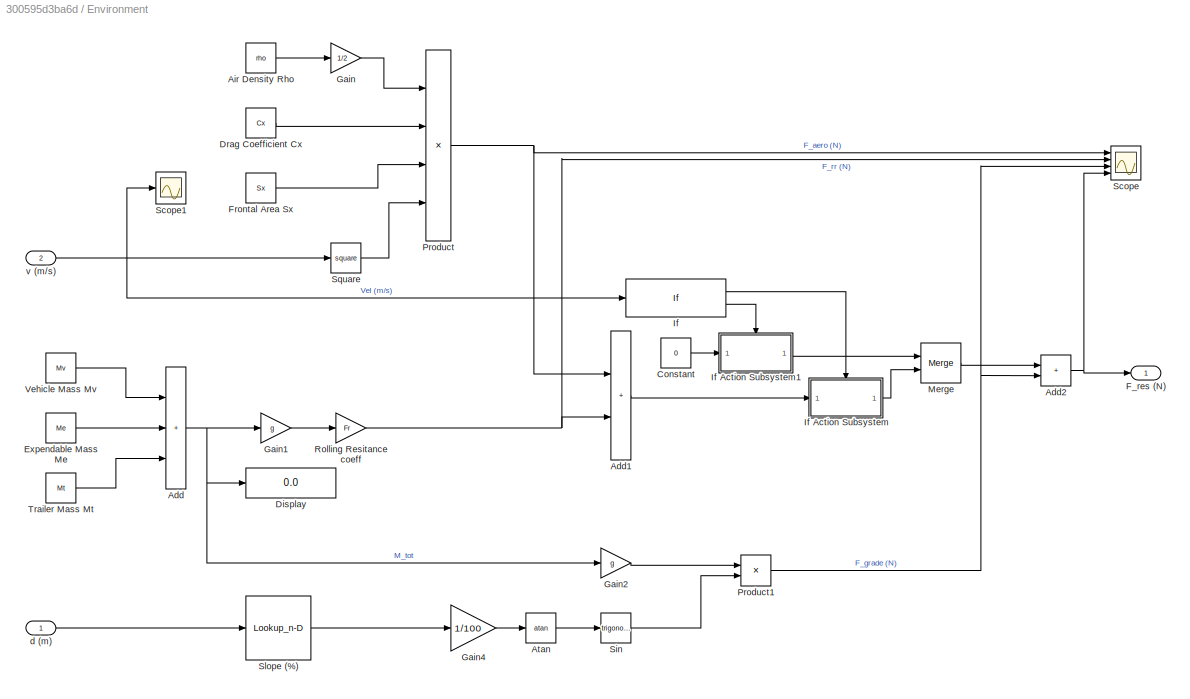
BLOCK [SubSystem] Environment
  Ports = [2, 1]
  RequestExecContextInheritance = off
BLOCK [Sum] Environment/Add
  IconShape = rectangular
  Inputs = +++
  Ports = [3, 1]
BLOCK [Sum] Environment/Add1
  IconShape = rectangular
  Ports = [2, 1]
BLOCK [Sum] Environment/Add2
  IconShape = rectangular
  Ports = [2, 1]
BLOCK [Constant] Environment/Air Density Rho
  Value = rho
BLOCK [Trigonometry] Environment/Atan
  Operator = atan
  Ports = [1, 1]
BLOCK [Constant] Environment/Constant
  Value = 0
BLOCK [Display] Environment/Display
  Decimation = 1
  Ports = [1]
BLOCK [Constant] Environment/Drag Coefficient Cx
  Value = Cx
BLOCK [Constant] Environment/Expendable Mass Me
  Value = Me
BLOCK [Outport] Environment/F_res (N)
BLOCK [Constant] Environment/Frontal Area Sx
  Value = Sx
BLOCK [Gain] Environment/Gain
  Gain = 1/2
BLOCK [Gain] Environment/Gain1
  Gain = g
BLOCK [Gain] Environment/Gain2
  Gain = g
BLOCK [Gain] Environment/Gain4
  Gain = 1/100
BLOCK [If] Environment/If
  Ports = [1, 2]
BLOCK [SubSystem] Environment/If Action Subsystem
  Ports = [1, 1, 0, 0, 0, 0, 0, 1]
  RequestExecContextInheritance = off
  TreatAsAtomicUnit = on
BLOCK [ActionPort] Environment/If Action Subsystem/Action Port
  ActionPortLabel = if(u1 > 0)
BLOCK [Inport] Environment/If Action Subsystem/In1
BLOCK [Outport] Environment/If Action Subsystem/Out1
BLOCK [SubSystem] Environment/If Action Subsystem1
  Ports = [1, 1, 0, 0, 0, 0, 0, 1]
  RequestExecContextInheritance = off
  TreatAsAtomicUnit = on
BLOCK [ActionPort] Environment/If Action Subsystem1/Action Port
  ActionPortLabel = else
BLOCK [Inport] Environment/If Action Subsystem1/In1
BLOCK [Outport] Environment/If Action Subsystem1/Out1
BLOCK [Merge] Environment/Merge
  Ports = [2, 1]
BLOCK [Product] Environment/Product
  Inputs = 4
  Ports = [4, 1]
BLOCK [Product] Environment/Product1
  Ports = [2, 1]
BLOCK [Gain] Environment/Rolling Resitance coeff
  Gain = Fr
BLOCK [Scope] Environment/Scope
  Floating = off
  NumInputPorts = 4
  Ports = [4]
  ScopeSpecificationString = Simulink.scopes.TimeScopeBlockCfg('CurrentConfiguration', extmgr.ConfigurationSet(extmgr.Configuration('Core','General UI',true),extmgr.Configuration('Core','Source UI',true),extmgr.Configuration('Sources','WiredSimulink',true,'DataLoggingVariableName','ScopeData16'),extmgr.Configuration('Visuals','Time Domain',true,'SerializedDisplays',{struct('MinYLimReal','-7414.9342','MaxYLimReal','11944.14018...<+1613ch>
BLOCK [Scope] Environment/Scope1
  Floating = off
  NumInputPorts = 1
  Ports = [1]
  ScopeSpecificationString = Simulink.scopes.TimeScopeBlockCfg('CurrentConfiguration', extmgr.ConfigurationSet(extmgr.Configuration('Core','General UI',true),extmgr.Configuration('Core','Source UI',true),extmgr.Configuration('Sources','WiredSimulink',true,'DataLoggingVariableName','ScopeData10'),extmgr.Configuration('Visuals','Time Domain',true,'SerializedDisplays',{struct('MinYLimReal','-1.15217','MaxYLimReal','10.36951','YL...<+1417ch>
BLOCK [Trigonometry] Environment/Sin
  Ports = [1, 1]
BLOCK [Lookup_n-D] Environment/Slope (%)
  BreakpointsForDimension1 = Dist
  InputPortMap = u0
  InternalRulePriority = Speed
  NumberOfTableDimensions = 1
  Ports = [1, 1]
  RndMeth = Simplest
  Table = IntpSlope
BLOCK [Math] Environment/Square
  Operator = square
  Ports = [1, 1]
BLOCK [Constant] Environment/Trailer Mass Mt
  Value = Mt
BLOCK [Constant] Environment/Vehicle Mass Mv
  Value = Mv
BLOCK [Inport] Environment/d (m)
BLOCK [Inport] Environment/v (m//s)
  Port = 2
BLOCK [Scope] Scope2
  Floating = off
  NumInputPorts = 1
  Ports = [1]
  ScopeSpecificationString = Simulink.scopes.TimeScopeBlockCfg('CurrentConfiguration', extmgr.ConfigurationSet(extmgr.Configuration('Core','General UI',true),extmgr.Configuration('Core','Source UI',true),extmgr.Configuration('Sources','WiredSimulink',true,'DataLoggingVariableName','ScopeData7'),extmgr.Configuration('Visuals','Time Domain',true,'SerializedDisplays',{struct('MinYLimReal','-1727.68361','MaxYLimReal','6831.2002',...<+1459ch>
BLOCK [SubSystem] Vehicle Model
  Ports = [6, 2]
  RequestExecContextInheritance = off
BLOCK [Inport] Vehicle Model/Apos (0-1)
  Port = 3
BLOCK [Inport] Vehicle Model/Bpos (0-1)
  NameLocation = top
  Port = 4
BLOCK [SubSystem] Vehicle Model/Chassis
  Ports = [5, 2]
  RequestExecContextInheritance = off
BLOCK [Inport] Vehicle Model/Chassis/Bpos (0-1)
  Port = 2
BLOCK [Constant] Vehicle Model/Chassis/Constant27
  Value = DynRolRad
BLOCK [Product] Vehicle Model/Chassis/Divide2
  Inputs = */
  Ports = [2, 1]
BLOCK [Inport] Vehicle Model/Chassis/F_res (N)
  Port = 3
BLOCK [Gain] Vehicle Model/Chassis/Gain11
  Gain = -Mtot
BLOCK [Gain] Vehicle Model/Chassis/Gain18
  Gain = 1/Mtot
BLOCK [Gain] Vehicle Model/Chassis/Gain27
  Gain = pi*DynRolRad/30
BLOCK [Gain] Vehicle Model/Chassis/Gain4
  Gain = MaxDec
BLOCK [Outport] Vehicle Model/Chassis/Index for vehicle position
BLOCK [Integrator] Vehicle Model/Chassis/Integrator2
  ContinuousStateAttributes = 'acceleration'
  Ports = [1, 1]
BLOCK [Integrator] Vehicle Model/Chassis/Integrator5
  ContinuousStateAttributes = 'velocity'
  InitialConditionSource = external
  Ports = [2, 1]
BLOCK [Saturate] Vehicle Model/Chassis/Only positive1
  LowerLimit = 0
  UpperLimit = inf
BLOCK [Saturate] Vehicle Model/Chassis/Only positive2
  LowerLimit = 0
  UpperLimit = inf
BLOCK [Lookup_n-D] Vehicle Model/Chassis/Operating Cycle
  BreakpointsForDimension1 = Dist
  BreakpointsForDimension2 = G1Inprpm
  InputPortMap = u0
  InternalRulePriority = Speed
  InterpMethod = Linear Lagrange
  NumberOfTableDimensions = 1
  Ports = [1, 1]
  RndMeth = Simplest
  Table = MaxSpeedProfile
BLOCK [Saturate] Vehicle Model/Chassis/Saturation
  LowerLimit = -(MaxDec)
  UpperLimit = MaxAcc
BLOCK [Scope] Vehicle Model/Chassis/Scope
  Floating = off
  NumInputPorts = 2
  Ports = [2]
  ScopeSpecificationString = Simulink.scopes.TimeScopeBlockCfg('CurrentConfiguration', extmgr.ConfigurationSet(extmgr.Configuration('Core','General UI',true),extmgr.Configuration('Core','Source UI',true),extmgr.Configuration('Sources','WiredSimulink',true,'DataLoggingVariableName','ScopeData3'),extmgr.Configuration('Visuals','Time Domain',true,'SerializedDisplays',{struct('MinYLimReal','-3.88783','MaxYLimReal','34.99043','YLa...<+1498ch>
BLOCK [Scope] Vehicle Model/Chassis/Scope1
  Floating = off
  NumInputPorts = 1
  Ports = [1]
  ScopeSpecificationString = Simulink.scopes.TimeScopeBlockCfg('CurrentConfiguration', extmgr.ConfigurationSet(extmgr.Configuration('Core','General UI',true),extmgr.Configuration('Core','Source UI',true),extmgr.Configuration('Sources','WiredSimulink',true,'DataLoggingVariableName','ScopeData2'),extmgr.Configuration('Visuals','Time Domain',true,'SerializedDisplays',{struct('MinYLimReal','-1.875','MaxYLimReal','1.875','YLabelRe...<+1463ch>
BLOCK [Scope] Vehicle Model/Chassis/Scope3
  Floating = off
  NumInputPorts = 4
  Ports = [4]
  ScopeSpecificationString = Simulink.scopes.TimeScopeBlockCfg('CurrentConfiguration', extmgr.ConfigurationSet(extmgr.Configuration('Core','General UI',true),extmgr.Configuration('Core','Source UI',true),extmgr.Configuration('Sources','WiredSimulink',true,'DataLoggingVariableName','ScopeData5'),extmgr.Configuration('Visuals','Time Domain',true,'SerializedDisplays',{struct('MinYLimReal','-199477.74057','MaxYLimReal','53849.764...<+1608ch>
BLOCK [Scope] Vehicle Model/Chassis/Scope30
  Floating = off
  NumInputPorts = 2
  Ports = [2]
  ScopeSpecificationString = Simulink.scopes.TimeScopeBlockCfg('CurrentConfiguration', extmgr.ConfigurationSet(extmgr.Configuration('Core','General UI',true),extmgr.Configuration('Core','Source UI',true),extmgr.Configuration('Sources','WiredSimulink',true,'DataLoggingVariableName','ScopeData16'),extmgr.Configuration('Visuals','Time Domain',true,'SerializedDisplays',{struct('MinYLimReal','-1.75808','MaxYLimReal','15.82274','YL...<+1528ch>
BLOCK [Scope] Vehicle Model/Chassis/Scope5
  Floating = off
  NumInputPorts = 1
  Ports = [1]
  ScopeSpecificationString = Simulink.scopes.TimeScopeBlockCfg('CurrentConfiguration', extmgr.ConfigurationSet(extmgr.Configuration('Core','General UI',true),extmgr.Configuration('Core','Source UI',true),extmgr.Configuration('Sources','WiredSimulink',true,'DataLoggingVariableName','ScopeData2'),extmgr.Configuration('Visuals','Time Domain',true,'SerializedDisplays',{struct('MinYLimReal','1483.43324','MaxYLimReal','1533.59159',...<+1482ch>
BLOCK [Sum] Vehicle Model/Chassis/Subtract8
  IconShape = rectangular
  Inputs = ++-
  Ports = [3, 1]
BLOCK [Inport] Vehicle Model/Chassis/T_w (Nm)
  Port = 4
BLOCK [ToWorkspace] Vehicle Model/Chassis/To Workspace
  FixptAsFi = on
  MaxDataPoints = inf
  Ports = [1]
  SampleTime = -1
  SaveFormat = Timeseries
  VariableName = TargVval
BLOCK [ToWorkspace] Vehicle Model/Chassis/To Workspace3
  FixptAsFi = on
  MaxDataPoints = inf
  Ports = [1]
  SampleTime = -1
  SaveFormat = Timeseries
  VariableName = acc
BLOCK [Inport] Vehicle Model/Chassis/W_w_real (rot//min)
  Port = 5
BLOCK [Outport] Vehicle Model/Chassis/v (m//s)
  NameLocation = top
  Port = 2
BLOCK [Inport] Vehicle Model/Chassis/v_init (m//s)
BLOCK [Inport] Vehicle Model/Cpos (0-1)
BLOCK [SubSystem] Vehicle Model/Differential and Wheels
  Ports = [4, 1]
  RequestExecContextInheritance = off
BLOCK [Sum] Vehicle Model/Differential and Wheels/Add4
  IconShape = rectangular
  Inputs = +++
  Ports = [3, 1]
BLOCK [Sum] Vehicle Model/Differential and Wheels/Add5
  IconShape = rectangular
  Ports = [2, 1]
BLOCK [Constant] Vehicle Model/Differential and Wheels/Constant28
  Value = NoWhlFA
BLOCK [Constant] Vehicle Model/Differential and Wheels/Constant29
  Value = NoWhlRA
BLOCK [Derivative] Vehicle Model/Differential and Wheels/Derivative6
BLOCK [Gain] Vehicle Model/Differential and Wheels/FDR4
  Gain = FDR
BLOCK [Gain] Vehicle Model/Differential and Wheels/FDR5
  Gain = 1/FDR
BLOCK [Gain] Vehicle Model/Differential and Wheels/FDR6
  Gain = FDR
BLOCK [Gain] Vehicle Model/Differential and Wheels/Gain26
  Gain = Jk
BLOCK [Product] Vehicle Model/Differential and Wheels/Product10
  Ports = [2, 1]
BLOCK [Scope] Vehicle Model/Differential and Wheels/Scope
  Floating = off
  NumInputPorts = 1
  Ports = [1]
  ScopeSpecificationString = Simulink.scopes.TimeScopeBlockCfg('CurrentConfiguration', extmgr.ConfigurationSet(extmgr.Configuration('Core','General UI',true),extmgr.Configuration('Core','Source UI',true),extmgr.Configuration('Sources','WiredSimulink',true,'DataLoggingVariableName','ScopeData11'),extmgr.Configuration('Visuals','Time Domain',true,'SerializedDisplays',{struct('MinYLimReal','-212034.84163','MaxYLimReal','170788.4...<+1477ch>
BLOCK [Scope] Vehicle Model/Differential and Wheels/Scope2
  Floating = off
  NumInputPorts = 2
  Ports = [2]
  ScopeSpecificationString = Simulink.scopes.TimeScopeBlockCfg('CurrentConfiguration', extmgr.ConfigurationSet(extmgr.Configuration('Core','General UI',true),extmgr.Configuration('Core','Source UI',true),extmgr.Configuration('Sources','WiredSimulink',true,'DataLoggingVariableName','ScopeData6'),extmgr.Configuration('Visuals','Time Domain',true,'SerializedDisplays',{struct('MinYLimReal','-38.91702','MaxYLimReal','314.04761','Y...<+1517ch>
BLOCK [Inport] Vehicle Model/Differential and Wheels/T_g (Nm)
BLOCK [Inport] Vehicle Model/Differential and Wheels/T_g_inertia (Nm)
  Port = 2
BLOCK [Outport] Vehicle Model/Differential and Wheels/T_w (Nm)
BLOCK [Inport] Vehicle Model/Differential and Wheels/W_g (rot//min)
  Port = 3
BLOCK [Inport] Vehicle Model/Differential and Wheels/W_w_real (rot//min)
  Port = 4
BLOCK [SubSystem] Vehicle Model/Engine Model
  Ports = [3, 3]
  RequestExecContextInheritance = off
BLOCK [Lookup_n-D] Vehicle Model/Engine Model/1-D Lookup Table1
  BreakpointsForDimension1 = ThrotPos
  BreakpointsForDimension2 = RpmBrkPnt
  InputPortMap = u0,u1
  InternalRulePriority = Speed
  Ports = [2, 1]
  RndMeth = Simplest
  Table = ThrotTableVal
BLOCK [Inport] Vehicle Model/Engine Model/Apos (0-1)
BLOCK [SubSystem] Vehicle Model/Engine Model/Clutch
  Ports = [3, 1]
  RequestExecContextInheritance = off
BLOCK [Product] Vehicle Model/Engine Model/Clutch/Clutch value1
  Ports = [2, 1]
BLOCK [Inport] Vehicle Model/Engine Model/Clutch/Cpos
BLOCK [Gain] Vehicle Model/Engine Model/Clutch/Gain20
  Gain = etaClutch
BLOCK [InitialCondition] Vehicle Model/Engine Model/Clutch/IC2
  Value = 0
BLOCK [Saturate] Vehicle Model/Engine Model/Clutch/Saturation2
  LowerLimit = 0
  UpperLimit = inf
BLOCK [Scope] Vehicle Model/Engine Model/Clutch/Scope
  Floating = off
  NumInputPorts = 1
  Ports = [1]
  ScopeSpecificationString = Simulink.scopes.TimeScopeBlockCfg('CurrentConfiguration', extmgr.ConfigurationSet(extmgr.Configuration('Core','General UI',true),extmgr.Configuration('Core','Source UI',true),extmgr.Configuration('Sources','WiredSimulink',true,'DataLoggingVariableName','ScopeData3'),extmgr.Configuration('Visuals','Time Domain',true,'SerializedDisplays',{struct('MinYLimReal','-307.03123','MaxYLimReal','2763.28103',...<+1417ch>
BLOCK [Scope] Vehicle Model/Engine Model/Clutch/Scope1
  Floating = off
  NumInputPorts = 2
  Ports = [2]
  ScopeSpecificationString = Simulink.scopes.TimeScopeBlockCfg('CurrentConfiguration', extmgr.ConfigurationSet(extmgr.Configuration('Core','General UI',true),extmgr.Configuration('Core','Source UI',true),extmgr.Configuration('Sources','WiredSimulink',true,'DataLoggingVariableName','ScopeData4'),extmgr.Configuration('Visuals','Time Domain',true,'SerializedDisplays',{struct('MinYLimReal','-2865.43459','MaxYLimReal','725.1378','...<+1482ch>
BLOCK [Sum] Vehicle Model/Engine Model/Clutch/Subtract
  IconShape = rectangular
  Inputs = +-
  Ports = [2, 1]
BLOCK [Outport] Vehicle Model/Engine Model/Clutch/T_c (Nm)
BLOCK [Inport] Vehicle Model/Engine Model/Clutch/T_e (Nm)
  Port = 2
BLOCK [Inport] Vehicle Model/Engine Model/Clutch/T_e_inertia (Nm)
  Port = 3
BLOCK [Inport] Vehicle Model/Engine Model/Cpos
  Port = 2
BLOCK [Derivative] Vehicle Model/Engine Model/Derivative4
BLOCK [Display] Vehicle Model/Engine Model/Display
  Decimation = 1
  Ports = [1]
BLOCK [Outport] Vehicle Model/Engine Model/FC (l)
BLOCK [Lookup_n-D] Vehicle Model/Engine Model/FC Map1
  BreakpointsForDimension1 = ThrotPos
  BreakpointsForDimension2 = RpmBrkPnt
  InputPortMap = u0,u1
  InternalRulePriority = Speed
  Ports = [2, 1]
  RndMeth = Simplest
  Table = FCTableVal
BLOCK [Gain] Vehicle Model/Engine Model/Gain
  Gain = 1/843
BLOCK [Gain] Vehicle Model/Engine Model/Gain21
  Gain = pi/30
BLOCK [Gain] Vehicle Model/Engine Model/Gain22
  Gain = 1/3600
BLOCK [Gain] Vehicle Model/Engine Model/Gain23
  Gain = Je
BLOCK [Gain] Vehicle Model/Engine Model/Gain24
  Gain = pi/30
BLOCK [Integrator] Vehicle Model/Engine Model/Integrator1
  Ports = [1, 1]
BLOCK [Lookup_n-D] Vehicle Model/Engine Model/Motoring Torque Table1
  BreakpointsForDimension1 = EngineRpm
  BreakpointsForDimension2 = G1Inprpm
  InputPortMap = u0
  InternalRulePriority = Speed
  InterpMethod = Linear Lagrange
  NumberOfTableDimensions = 1
  Ports = [1, 1]
  RndMeth = Simplest
  Table = MotoringTor
BLOCK [Outport] Vehicle Model/Engine Model/P_e (W)
  Port = 2
BLOCK [Product] Vehicle Model/Engine Model/Product8
  Ports = [2, 1]
BLOCK [Saturate] Vehicle Model/Engine Model/Saturation6
  LowerLimit = 0
  UpperLimit = inf
BLOCK [Scope] Vehicle Model/Engine Model/Scope
  Floating = off
  NumInputPorts = 1
  Ports = [1]
  ScopeSpecificationString = Simulink.scopes.TimeScopeBlockCfg('CurrentConfiguration', extmgr.ConfigurationSet(extmgr.Configuration('Core','General UI',true),extmgr.Configuration('Core','Source UI',true),extmgr.Configuration('Sources','WiredSimulink',true,'DataLoggingVariableName','ScopeData1'),extmgr.Configuration('Visuals','Time Domain',true,'SerializedDisplays',{struct('MinYLimReal','-1.00000','MaxYLimReal','1.00000','YLab...<+1440ch>
BLOCK [Scope] Vehicle Model/Engine Model/Scope1
  Floating = off
  NumInputPorts = 1
  Ports = [1]
  ScopeSpecificationString = Simulink.scopes.TimeScopeBlockCfg('CurrentConfiguration', extmgr.ConfigurationSet(extmgr.Configuration('Core','General UI',true),extmgr.Configuration('Core','Source UI',true),extmgr.Configuration('Sources','WiredSimulink',true,'DataLoggingVariableName','ScopeData4'),extmgr.Configuration('Visuals','Time Domain',true,'SerializedDisplays',{struct('MinYLimReal','-102.59722','MaxYLimReal','143.37393','...<+1459ch>
BLOCK [Scope] Vehicle Model/Engine Model/Scope23
  Floating = off
  NumInputPorts = 1
  Ports = [1]
  ScopeSpecificationString = Simulink.scopes.TimeScopeBlockCfg('CurrentConfiguration', extmgr.ConfigurationSet(extmgr.Configuration('Core','General UI',true),extmgr.Configuration('Core','Source UI',true),extmgr.Configuration('Sources','WiredSimulink',true,'DataLoggingVariableName','ScopeData9'),extmgr.Configuration('Visuals','Time Domain',true,'SerializedDisplays',{struct('MinYLimReal','350.00000','MaxYLimReal','2850.00000','...<+1503ch>
BLOCK [Scope] Vehicle Model/Engine Model/Scope26
  Floating = off
  NumInputPorts = 2
  Ports = [2]
  ScopeSpecificationString = Simulink.scopes.TimeScopeBlockCfg('CurrentConfiguration', extmgr.ConfigurationSet(extmgr.Configuration('Core','General UI',true),extmgr.Configuration('Core','Source UI',true),extmgr.Configuration('Sources','WiredSimulink',true,'DataLoggingVariableName','ScopeData12'),extmgr.Configuration('Visuals','Time Domain',true,'SerializedDisplays',{struct('MinYLimReal','-171.77486','MaxYLimReal','710.31437',...<+1471ch>
BLOCK [Sum] Vehicle Model/Engine Model/Subtract7
  IconShape = rectangular
  Ports = [2, 1]
BLOCK [Outport] Vehicle Model/Engine Model/T_c (Nm)
  Port = 3
BLOCK [ToWorkspace] Vehicle Model/Engine Model/To Workspace
  FixptAsFi = on
  MaxDataPoints = inf
  Ports = [1]
  SampleTime = -1
  SaveFormat = Timeseries
  VariableName = FCgphval
BLOCK [ToWorkspace] Vehicle Model/Engine Model/To Workspace1
  FixptAsFi = on
  MaxDataPoints = inf
  Ports = [1]
  SampleTime = -1
  SaveFormat = Timeseries
  VariableName = T_e_out
BLOCK [ToWorkspace] Vehicle Model/Engine Model/To Workspace2
  FixptAsFi = on
  MaxDataPoints = inf
  Ports = [1]
  SampleTime = -1
  SaveFormat = Timeseries
  VariableName = W_e_out
BLOCK [Inport] Vehicle Model/Engine Model/W_e_inp (rot//min)
  Port = 3
BLOCK [Inport] Vehicle Model/F_res (N)
  NameLocation = top
  Port = 5
BLOCK [Inport] Vehicle Model/GNo
  Port = 2
BLOCK [Gain] Vehicle Model/Gain7
  Gain = 30/(pi*DynRolRad)
  NameLocation = top
BLOCK [Gain] Vehicle Model/Gain8
  Gain = FDR
  NameLocation = top
BLOCK [SubSystem] Vehicle Model/Gearbox
  Ports = [3, 5]
  RequestExecContextInheritance = off
BLOCK [Constant] Vehicle Model/Gearbox/Constant20
BLOCK [Derivative] Vehicle Model/Gearbox/Derivative5
BLOCK [LookupNDDirect] Vehicle Model/Gearbox/Direct Lookup Table (n-D)2
  NumberOfTableDimensions = 1
  Ports = [1, 1]
  Table = GRa
BLOCK [Product] Vehicle Model/Gearbox/Divide
  Inputs = */
  Ports = [2, 1]
BLOCK [Lookup_n-D] Vehicle Model/Gearbox/GBX Loss Tables1
  BreakpointsForDimension1 = GInpTor
  BreakpointsForDimension2 = GInprpm
  BreakpointsForDimension3 = GNo
  InputPortMap = u0,u1,u2
  InternalRulePriority = Speed
  InterpMethod = Linear Lagrange
  NumberOfTableDimensions = 3
  Ports = [3, 1]
  RndMeth = Simplest
  Table = GTorLoss
BLOCK [Inport] Vehicle Model/Gearbox/GNo
BLOCK [Outport] Vehicle Model/Gearbox/GRa
  Port = 5
BLOCK [Gain] Vehicle Model/Gearbox/Gain12
  Gain = pi/30
BLOCK [Gain] Vehicle Model/Gearbox/Gain17
  Gain = Jm
BLOCK [Sum] Vehicle Model/Gearbox/Index1
  IconShape = rectangular
  Inputs = +-
  Ports = [2, 1]
BLOCK [Outport] Vehicle Model/Gearbox/P_g (W)
BLOCK [Product] Vehicle Model/Gearbox/Product12
  Ports = [2, 1]
BLOCK [Product] Vehicle Model/Gearbox/Product13
  Ports = [2, 1]
BLOCK [Product] Vehicle Model/Gearbox/Product7
  Ports = [2, 1]
BLOCK [Saturate] Vehicle Model/Gearbox/Saturation7
  LowerLimit = 0
  UpperLimit = inf
BLOCK [Scope] Vehicle Model/Gearbox/Scope
  Floating = off
  NumInputPorts = 2
  Ports = [2]
  ScopeSpecificationString = Simulink.scopes.TimeScopeBlockCfg('CurrentConfiguration', extmgr.ConfigurationSet(extmgr.Configuration('Core','General UI',true),extmgr.Configuration('Core','Source UI',true),extmgr.Configuration('Sources','WiredSimulink',true,'DataLoggingVariableName','ScopeData7'),extmgr.Configuration('Visuals','Time Domain',true,'SerializedDisplays',{struct('MinYLimReal','-1194.84984','MaxYLimReal','10503.59359...<+1477ch>
BLOCK [Sum] Vehicle Model/Gearbox/Subtract6
  IconShape = rectangular
  Inputs = +-
  Ports = [2, 1]
BLOCK [Inport] Vehicle Model/Gearbox/T_c (Nm)
  Port = 2
BLOCK [Outport] Vehicle Model/Gearbox/T_g_inertia (Nm)
  Port = 3
BLOCK [Outport] Vehicle Model/Gearbox/T_g_out (Nm)
  Port = 2
BLOCK [Inport] Vehicle Model/Gearbox/W_c_real (rot//min)
  Port = 3
BLOCK [Outport] Vehicle Model/Gearbox/W_g (rot//min)
  Port = 4
BLOCK [Memory] Vehicle Model/Memory
  NameLocation = top
BLOCK [Product] Vehicle Model/Product3
  NameLocation = top
  Ports = [2, 1]
BLOCK [Saturate] Vehicle Model/Saturation4
  LowerLimit = min(EngineRpm)
  NameLocation = top
  UpperLimit = max(EngineRpm)
BLOCK [Scope] Vehicle Model/Scope
  Floating = off
  NumInputPorts = 1
  Ports = [1]
  ScopeSpecificationString = Simulink.scopes.TimeScopeBlockCfg('CurrentConfiguration', extmgr.ConfigurationSet(extmgr.Configuration('Core','General UI',true),extmgr.Configuration('Core','Source UI',true),extmgr.Configuration('Sources','WiredSimulink',true,'DataLoggingVariableName','ScopeData6'),extmgr.Configuration('Visuals','Time Domain',true,'SerializedDisplays',{struct('MinYLimReal','0.72827','MaxYLimReal','5.18372','YLabe...<+1434ch>
BLOCK [Scope] Vehicle Model/Scope1
  Floating = off
  NumInputPorts = 2
  Ports = [2]
  ScopeSpecificationString = Simulink.scopes.TimeScopeBlockCfg('CurrentConfiguration', extmgr.ConfigurationSet(extmgr.Configuration('Core','General UI',true),extmgr.Configuration('Core','Source UI',true),extmgr.Configuration('Sources','WiredSimulink',true,'DataLoggingVariableName','ScopeData7'),extmgr.Configuration('Visuals','Time Domain',true,'SerializedDisplays',{struct('MinYLimReal','-229.5326','MaxYLimReal','2065.79336','...<+1478ch>
BLOCK [Scope] Vehicle Model/Scope22
  Floating = off
  NumInputPorts = 1
  Ports = [1]
  ScopeSpecificationString = Simulink.scopes.TimeScopeBlockCfg('CurrentConfiguration', extmgr.ConfigurationSet(extmgr.Configuration('Core','General UI',true),extmgr.Configuration('Core','Source UI',true),extmgr.Configuration('Sources','WiredSimulink',true,'DataLoggingVariableName','ScopeData17'),extmgr.Configuration('Visuals','Time Domain',true,'SerializedDisplays',{struct('MinYLimReal','-26558.07678','MaxYLimReal','79560.947...<+1410ch>
BLOCK [Scope] Vehicle Model/Scope23
  Floating = off
  NumInputPorts = 1
  Ports = [1]
  ScopeSpecificationString = Simulink.scopes.TimeScopeBlockCfg('CurrentConfiguration', extmgr.ConfigurationSet(extmgr.Configuration('Core','General UI',true),extmgr.Configuration('Core','Source UI',true),extmgr.Configuration('Sources','WiredSimulink',true,'DataLoggingVariableName','ScopeData18'),extmgr.Configuration('Visuals','Time Domain',true,'SerializedDisplays',{struct('MinYLimReal','-0.05703','MaxYLimReal','0.51325','YLa...<+1445ch>
BLOCK [Scope] Vehicle Model/Scope24
  Floating = off
  NumInputPorts = 1
  Ports = [1]
  ScopeSpecificationString = Simulink.scopes.TimeScopeBlockCfg('CurrentConfiguration', extmgr.ConfigurationSet(extmgr.Configuration('Core','General UI',true),extmgr.Configuration('Core','Source UI',true),extmgr.Configuration('Sources','WiredSimulink',true,'DataLoggingVariableName','ScopeData19'),extmgr.Configuration('Visuals','Time Domain',true,'SerializedDisplays',{struct('MinYLimReal','-284346.46098','MaxYLimReal','5542628....<+1482ch>
BLOCK [ToWorkspace] Vehicle Model/To Workspace
  FixptAsFi = on
  MaxDataPoints = inf
  Ports = [1]
  SampleTime = -1
  SaveFormat = Timeseries
  VariableName = Vmpsval
BLOCK [ToWorkspace] Vehicle Model/To Workspace1
  FixptAsFi = on
  MaxDataPoints = inf
  Ports = [1]
  SampleTime = -1
  SaveFormat = Timeseries
  VariableName = distval
BLOCK [Outport] Vehicle Model/d (m)
  Port = 2
BLOCK [Outport] Vehicle Model/v (m//s)
BLOCK [Inport] Vehicle Model/v_init (m//s)
  NameLocation = top
  Port = 6
ANNOTATION Driver Model/Gear and Clutch Definition/Clutch position definition/Triggered Single Pulse/+ve edge detect: Edge
LINE Constant:1 -> Vehicle Model:6
NET Driver Model/Acc//Dec Control/Add:1 -> Driver Model/Acc//Dec Control/Idling state:1, Driver Model/Acc//Dec Control/Longitudinal Driver:1, Driver Model/Acc//Dec Control/Scope2:2
LINE Driver Model/Acc//Dec Control/Constant1:1 -> Driver Model/Acc//Dec Control/Mux1:2
LINE Driver Model/Acc//Dec Control/Constant4:1 -> Driver Model/Acc//Dec Control/Switch:3
LINE Driver Model/Acc//Dec Control/Constant:1 -> Driver Model/Acc//Dec Control/Mux1:1
LINE Driver Model/Acc//Dec Control/Creeping Velocity:1 -> Driver Model/Acc//Dec Control/Switch:1
LINE Driver Model/Acc//Dec Control/Data Type Conversion:1 -> Driver Model/Acc//Dec Control/Longitudinal Driver:4
NET Driver Model/Acc//Dec Control/Demux:1 -> Driver Model/Acc//Dec Control/Apos(m//s^2):1, Driver Model/Acc//Dec Control/Scope1:1
NET Driver Model/Acc//Dec Control/Demux:2 -> Driver Model/Acc//Dec Control/Bpos (0-1):1, Driver Model/Acc//Dec Control/Scope1:2
LINE Driver Model/Acc//Dec Control/Engine Idling:1 -> Driver Model/Acc//Dec Control/Demux:1
NET Driver Model/Acc//Dec Control/Generated Operating Cycle:1 -> Driver Model/Acc//Dec Control/Add:1, Driver Model/Acc//Dec Control/Scope2:1
LINE Driver Model/Acc//Dec Control/Idling state/Constant2:1 -> Driver Model/Acc//Dec Control/Idling state/If Action Subsystem:1
LINE Driver Model/Acc//Dec Control/Idling state/Constant3:1 -> Driver Model/Acc//Dec Control/Idling state/If Action Subsystem1:1
LINE Driver Model/Acc//Dec Control/Idling state/Delay:1 -> Driver Model/Acc//Dec Control/Idling state/Engine_Idle:1
LINE Driver Model/Acc//Dec Control/Idling state/Idling at stop point:1 -> Driver Model/Acc//Dec Control/Idling state/If Action Subsystem:ifaction
LINE Driver Model/Acc//Dec Control/Idling state/Idling at stop point:2 -> Driver Model/Acc//Dec Control/Idling state/If Action Subsystem1:ifaction
LINE Driver Model/Acc//Dec Control/Idling state/If Action Subsystem/In1:1 -> Driver Model/Acc//Dec Control/Idling state/If Action Subsystem/Out1:1
LINE Driver Model/Acc//Dec Control/Idling state/If Action Subsystem1/In1:1 -> Driver Model/Acc//Dec Control/Idling state/If Action Subsystem1/Out1:1
LINE Driver Model/Acc//Dec Control/Idling state/If Action Subsystem1:1 -> Driver Model/Acc//Dec Control/Idling state/Merge:2
LINE Driver Model/Acc//Dec Control/Idling state/If Action Subsystem:1 -> Driver Model/Acc//Dec Control/Idling state/Merge:1
LINE Driver Model/Acc//Dec Control/Idling state/Merge:1 -> Driver Model/Acc//Dec Control/Idling state/Delay:1
LINE Driver Model/Acc//Dec Control/Idling state/Subtract:1 -> Driver Model/Acc//Dec Control/Idling state/Idling at stop point:2
LINE Driver Model/Acc//Dec Control/Idling state/d (m):1 -> Driver Model/Acc//Dec Control/Idling state/Idling at stop point:3
NET Driver Model/Acc//Dec Control/Idling state/v (m//s):1 -> Driver Model/Acc//Dec Control/Idling state/Idling at stop point:1, Driver Model/Acc//Dec Control/Idling state/Subtract:2
LINE Driver Model/Acc//Dec Control/Idling state/v_targ (m//s):1 -> Driver Model/Acc//Dec Control/Idling state/Subtract:1
NET Driver Model/Acc//Dec Control/Idling state:1 -> Driver Model/Acc//Dec Control/Engine Idling:2, Driver Model/Acc//Dec Control/Scope:1, Driver Model/Acc//Dec Control/Vehicle temporary stop:1
LINE Driver Model/Acc//Dec Control/Longitudinal Driver:2 -> Driver Model/Acc//Dec Control/Mux:1
LINE Driver Model/Acc//Dec Control/Longitudinal Driver:3 -> Driver Model/Acc//Dec Control/Mux:2
LINE Driver Model/Acc//Dec Control/Look Ahead Braking Model/Abs:1 -> Driver Model/Acc//Dec Control/Look Ahead Braking Model/Gain1:1
LINE Driver Model/Acc//Dec Control/Look Ahead Braking Model/Add3:1 -> Driver Model/Acc//Dec Control/Look Ahead Braking Model/upcoming speed (m//s):1
NET Driver Model/Acc//Dec Control/Look Ahead Braking Model/Ceil:1 -> Driver Model/Acc//Dec Control/Look Ahead Braking Model/Add3:1, Driver Model/Acc//Dec Control/Look Ahead Braking Model/SCP:1
LINE Driver Model/Acc//Dec Control/Look Ahead Braking Model/Constant1:1 -> Driver Model/Acc//Dec Control/Look Ahead Braking Model/If Action Subsystem1:1
LINE Driver Model/Acc//Dec Control/Look Ahead Braking Model/Constant2:1 -> Driver Model/Acc//Dec Control/Look Ahead Braking Model/If Action Subsystem2:1
LINE Driver Model/Acc//Dec Control/Look Ahead Braking Model/Constant4:1 -> Driver Model/Acc//Dec Control/Look Ahead Braking Model/Gain2:1
LINE Driver Model/Acc//Dec Control/Look Ahead Braking Model/Constant:1 -> Driver Model/Acc//Dec Control/Look Ahead Braking Model/Add3:2
LINE Driver Model/Acc//Dec Control/Look Ahead Braking Model/Data Type Conversion:1 -> Driver Model/Acc//Dec Control/Look Ahead Braking Model/Dec_OR:1
LINE Driver Model/Acc//Dec Control/Look Ahead Braking Model/Divide:1 -> Driver Model/Acc//Dec Control/Look Ahead Braking Model/Abs:1
NET Driver Model/Acc//Dec Control/Look Ahead Braking Model/Gain1:1 -> Driver Model/Acc//Dec Control/Look Ahead Braking Model/If1:2, Driver Model/Acc//Dec Control/Look Ahead Braking Model/Scope:2
LINE Driver Model/Acc//Dec Control/Look Ahead Braking Model/Gain2:1 -> Driver Model/Acc//Dec Control/Look Ahead Braking Model/Gain:1
LINE Driver Model/Acc//Dec Control/Look Ahead Braking Model/Gain:1 -> Driver Model/Acc//Dec Control/Look Ahead Braking Model/Divide:2
LINE Driver Model/Acc//Dec Control/Look Ahead Braking Model/If Action Subsystem1/In1:1 -> Driver Model/Acc//Dec Control/Look Ahead Braking Model/If Action Subsystem1/Out1:1
LINE Driver Model/Acc//Dec Control/Look Ahead Braking Model/If Action Subsystem1:1 -> Driver Model/Acc//Dec Control/Look Ahead Braking Model/Merge:2
LINE Driver Model/Acc//Dec Control/Look Ahead Braking Model/If Action Subsystem2/In1:1 -> Driver Model/Acc//Dec Control/Look Ahead Braking Model/If Action Subsystem2/Out1:1
LINE Driver Model/Acc//Dec Control/Look Ahead Braking Model/If Action Subsystem2:1 -> Driver Model/Acc//Dec Control/Look Ahead Braking Model/Merge:1
LINE Driver Model/Acc//Dec Control/Look Ahead Braking Model/If1:1 -> Driver Model/Acc//Dec Control/Look Ahead Braking Model/If Action Subsystem2:ifaction
LINE Driver Model/Acc//Dec Control/Look Ahead Braking Model/If1:2 -> Driver Model/Acc//Dec Control/Look Ahead Braking Model/If Action Subsystem1:ifaction
LINE Driver Model/Acc//Dec Control/Look Ahead Braking Model/Magnitude Squared1:1 -> Driver Model/Acc//Dec Control/Look Ahead Braking Model/Subtract1:2
LINE Driver Model/Acc//Dec Control/Look Ahead Braking Model/Magnitude Squared:1 -> Driver Model/Acc//Dec Control/Look Ahead Braking Model/Subtract1:1
LINE Driver Model/Acc//Dec Control/Look Ahead Braking Model/Max Speed Profile (m//s):1 -> Driver Model/Acc//Dec Control/Look Ahead Braking Model/Magnitude Squared1:1
NET Driver Model/Acc//Dec Control/Look Ahead Braking Model/Merge:1 -> Driver Model/Acc//Dec Control/Look Ahead Braking Model/Data Type Conversion:1, Driver Model/Acc//Dec Control/Look Ahead Braking Model/Scope2:1
LINE Driver Model/Acc//Dec Control/Look Ahead Braking Model/SCP:1 -> Driver Model/Acc//Dec Control/Look Ahead Braking Model/Subtract:2
LINE Driver Model/Acc//Dec Control/Look Ahead Braking Model/Segment number:1 -> Driver Model/Acc//Dec Control/Look Ahead Braking Model/Ceil:1
LINE Driver Model/Acc//Dec Control/Look Ahead Braking Model/Subtract1:1 -> Driver Model/Acc//Dec Control/Look Ahead Braking Model/Divide:1
NET Driver Model/Acc//Dec Control/Look Ahead Braking Model/Subtract:1 -> Driver Model/Acc//Dec Control/Look Ahead Braking Model/If1:1, Driver Model/Acc//Dec Control/Look Ahead Braking Model/Scope:1
LINE Driver Model/Acc//Dec Control/Look Ahead Braking Model/Zero-Order Hold:1 -> Driver Model/Acc//Dec Control/Look Ahead Braking Model/Max Speed Profile (m//s):1
NET Driver Model/Acc//Dec Control/Look Ahead Braking Model/d (m):1 -> Driver Model/Acc//Dec Control/Look Ahead Braking Model/Segment number:1, Driver Model/Acc//Dec Control/Look Ahead Braking Model/Subtract:1, Driver Model/Acc//Dec Control/Look Ahead Braking Model/Zero-Order Hold:1
NET Driver Model/Acc//Dec Control/Look Ahead Braking Model/upcoming speed (m//s):1 -> Driver Model/Acc//Dec Control/Look Ahead Braking Model/If1:3, Driver Model/Acc//Dec Control/Look Ahead Braking Model/Magnitude Squared:1
LINE Driver Model/Acc//Dec Control/Look Ahead Braking Model/v (m//s):1 -> Driver Model/Acc//Dec Control/Look Ahead Braking Model/If1:4
NET Driver Model/Acc//Dec Control/Look Ahead Braking Model:1 -> Driver Model/Acc//Dec Control/Data Type Conversion:1, Driver Model/Acc//Dec Control/Longitudinal Driver:2, Driver Model/Acc//Dec Control/Longitudinal Driver:3
LINE Driver Model/Acc//Dec Control/Mux1:1 -> Driver Model/Acc//Dec Control/Engine Idling:1
LINE Driver Model/Acc//Dec Control/Mux:1 -> Driver Model/Acc//Dec Control/Engine Idling:3
LINE Driver Model/Acc//Dec Control/Slope (%):1 -> Driver Model/Acc//Dec Control/Longitudinal Driver:6
LINE Driver Model/Acc//Dec Control/Stop duration/1-D Lookup Table:1 -> Driver Model/Acc//Dec Control/Stop duration/Ceil:1
LINE Driver Model/Acc//Dec Control/Stop duration/Ceil:1 -> Driver Model/Acc//Dec Control/Stop duration/Subtract1:1
LINE Driver Model/Acc//Dec Control/Stop duration/Constant2:1 -> Driver Model/Acc//Dec Control/Stop duration/Subtract1:2
NET Driver Model/Acc//Dec Control/Stop duration/Direct Lookup Table (n-D):1 -> Driver Model/Acc//Dec Control/Stop duration/Scope:1, Driver Model/Acc//Dec Control/Stop duration/Stop_t (s):1
LINE Driver Model/Acc//Dec Control/Stop duration/Subtract1:1 -> Driver Model/Acc//Dec Control/Stop duration/Direct Lookup Table (n-D):1
LINE Driver Model/Acc//Dec Control/Stop duration/d (m):1 -> Driver Model/Acc//Dec Control/Stop duration/1-D Lookup Table:1
LINE Driver Model/Acc//Dec Control/Stop duration:1 -> Driver Model/Acc//Dec Control/Vehicle temporary stop:2
LINE Driver Model/Acc//Dec Control/Switch:1 -> Driver Model/Acc//Dec Control/Add:2
LINE Driver Model/Acc//Dec Control/Trip complete/Constant1:1 -> Driver Model/Acc//Dec Control/Trip complete/If:2
LINE Driver Model/Acc//Dec Control/Trip complete/Constant2:1 -> Driver Model/Acc//Dec Control/Trip complete/If Action Subsystem:1
LINE Driver Model/Acc//Dec Control/Trip complete/Delay:1 -> Driver Model/Acc//Dec Control/Trip complete/Stop Simulation:1
LINE Driver Model/Acc//Dec Control/Trip complete/Derivative:1 -> Driver Model/Acc//Dec Control/Trip complete/If:3
LINE Driver Model/Acc//Dec Control/Trip complete/If Action Subsystem/In1:1 -> Driver Model/Acc//Dec Control/Trip complete/If Action Subsystem/Out1:1
LINE Driver Model/Acc//Dec Control/Trip complete/If Action Subsystem:1 -> Driver Model/Acc//Dec Control/Trip complete/Delay:1
LINE Driver Model/Acc//Dec Control/Trip complete/If:1 -> Driver Model/Acc//Dec Control/Trip complete/If Action Subsystem:ifaction
NET Driver Model/Acc//Dec Control/Trip complete/d (m):1 -> Driver Model/Acc//Dec Control/Trip complete/Derivative:1, Driver Model/Acc//Dec Control/Trip complete/If:1
LINE Driver Model/Acc//Dec Control/Vehicle temporary stop:1 -> Driver Model/Acc//Dec Control/Switch:2
NET Driver Model/Acc//Dec Control/d (m):1 -> Driver Model/Acc//Dec Control/Generated Operating Cycle:1, Driver Model/Acc//Dec Control/Idling state:3, Driver Model/Acc//Dec Control/Look Ahead Braking Model:1, Driver Model/Acc//Dec Control/Slope (%):1, Driver Model/Acc//Dec Control/Stop duration:1, Driver Model/Acc//Dec Control/Trip complete:1
NET Driver Model/Acc//Dec Control/v (m//s):1 -> Driver Model/Acc//Dec Control/Idling state:2, Driver Model/Acc//Dec Control/Longitudinal Driver:5, Driver Model/Acc//Dec Control/Look Ahead Braking Model:2
LINE Driver Model/Acc//Dec Control:1 -> Driver Model/Driver Throttle:3
NET Driver Model/Acc//Dec Control:2 -> Driver Model/Bpos (0-1):1, Driver Model/Scope1:2
LINE Driver Model/Driver Throttle/Add:1 -> Driver Model/Driver Throttle/Switch:3
NET Driver Model/Driver Throttle/Apos(m//s^2):1 -> Driver Model/Driver Throttle/Gain1:1, Driver Model/Driver Throttle/Idling// Apos = 0:1
LINE Driver Model/Driver Throttle/Constant1:1 -> Driver Model/Driver Throttle/Switch:1
LINE Driver Model/Driver Throttle/Constant20:1 -> Driver Model/Driver Throttle/Index1:2
NET Driver Model/Driver Throttle/Direct Lookup Table (n-D)2:1 -> Driver Model/Driver Throttle/Divide:2, Driver Model/Driver Throttle/Scope:1
LINE Driver Model/Driver Throttle/Divide:1 -> Driver Model/Driver Throttle/etaClutch2:1
LINE Driver Model/Driver Throttle/F_res (N):1 -> Driver Model/Driver Throttle/Add:2
LINE Driver Model/Driver Throttle/GNo:1 -> Driver Model/Driver Throttle/Index1:1
LINE Driver Model/Driver Throttle/Gain10:1 -> Driver Model/Driver Throttle/Divide:1
LINE Driver Model/Driver Throttle/Gain1:1 -> Driver Model/Driver Throttle/Gain4:1
LINE Driver Model/Driver Throttle/Gain4:1 -> Driver Model/Driver Throttle/Add:1
NET Driver Model/Driver Throttle/Gain9:1 -> Driver Model/Driver Throttle/Gain10:1, Driver Model/Driver Throttle/Scope3:1, Driver Model/Driver Throttle/T_w_req (Nm):1
LINE Driver Model/Driver Throttle/Idling// Apos = 0/Apos(m//s^2):1 -> Driver Model/Driver Throttle/Idling// Apos = 0/Idling:1
LINE Driver Model/Driver Throttle/Idling// Apos = 0/Constant2:1 -> Driver Model/Driver Throttle/Idling// Apos = 0/If Action Subsystem1:1
LINE Driver Model/Driver Throttle/Idling// Apos = 0/Constant:1 -> Driver Model/Driver Throttle/Idling// Apos = 0/If Action Subsystem:1
LINE Driver Model/Driver Throttle/Idling// Apos = 0/Idling:1 -> Driver Model/Driver Throttle/Idling// Apos = 0/If Action Subsystem:ifaction
LINE Driver Model/Driver Throttle/Idling// Apos = 0/Idling:2 -> Driver Model/Driver Throttle/Idling// Apos = 0/If Action Subsystem1:ifaction
LINE Driver Model/Driver Throttle/Idling// Apos = 0/If Action Subsystem/In1:1 -> Driver Model/Driver Throttle/Idling// Apos = 0/If Action Subsystem/Out1:1
LINE Driver Model/Driver Throttle/Idling// Apos = 0/If Action Subsystem1/In1:1 -> Driver Model/Driver Throttle/Idling// Apos = 0/If Action Subsystem1/Out1:1
LINE Driver Model/Driver Throttle/Idling// Apos = 0/If Action Subsystem1:1 -> Driver Model/Driver Throttle/Idling// Apos = 0/Merge:1
LINE Driver Model/Driver Throttle/Idling// Apos = 0/If Action Subsystem:1 -> Driver Model/Driver Throttle/Idling// Apos = 0/Merge:2
LINE Driver Model/Driver Throttle/Idling// Apos = 0/Merge:1 -> Driver Model/Driver Throttle/Idling// Apos = 0/Azero:1
LINE Driver Model/Driver Throttle/Idling// Apos = 0:1 -> Driver Model/Driver Throttle/Switch:2
LINE Driver Model/Driver Throttle/Index1:1 -> Driver Model/Driver Throttle/Saturation7:1
LINE Driver Model/Driver Throttle/Lookup Throttle position:1 -> Driver Model/Driver Throttle/Saturation2:1
NET Driver Model/Driver Throttle/Saturation2:1 -> Driver Model/Driver Throttle/Apos (0-1):1, Driver Model/Driver Throttle/Scope1:1
LINE Driver Model/Driver Throttle/Saturation7:1 -> Driver Model/Driver Throttle/Direct Lookup Table (n-D)2:1
LINE Driver Model/Driver Throttle/Switch:1 -> Driver Model/Driver Throttle/Gain9:1
LINE Driver Model/Driver Throttle/etaClutch2:1 -> Driver Model/Driver Throttle/Lookup Throttle position:1
LINE Driver Model/Driver Throttle:1 -> Driver Model/Gear and Clutch Definition:1
NET Driver Model/Driver Throttle:2 -> Driver Model/Apos(0-1):1, Driver Model/Scope1:1
LINE Driver Model/F_res (N):1 -> Driver Model/Driver Throttle:2
LINE Driver Model/Gear and Clutch Definition/Avl Torque @ gears:1 -> Driver Model/Gear and Clutch Definition/Ceil:1
LINE Driver Model/Gear and Clutch Definition/Ceil:1 -> Driver Model/Gear and Clutch Definition/Saturation1:1
LINE Driver Model/Gear and Clutch Definition/Clutch position definition/Constant2:1 -> Driver Model/Gear and Clutch Definition/Clutch position definition/If Action Subsystem3:1
LINE Driver Model/Gear and Clutch Definition/Clutch position definition/Constant3:1 -> Driver Model/Gear and Clutch Definition/Clutch position definition/If Action Subsystem4:1
LINE Driver Model/Gear and Clutch Definition/Clutch position definition/Constant:1 -> Driver Model/Gear and Clutch Definition/Clutch position definition/XOR:2
LINE Driver Model/Gear and Clutch Definition/Clutch position definition/Data Type Conversion:1 -> Driver Model/Gear and Clutch Definition/Clutch position definition/IC:1
NET Driver Model/Gear and Clutch Definition/Clutch position definition/GNo:1 -> Driver Model/Gear and Clutch Definition/Clutch position definition/If1:1, Driver Model/Gear and Clutch Definition/Clutch position definition/Memory:1
NET Driver Model/Gear and Clutch Definition/Clutch position definition/IC:1 -> Driver Model/Gear and Clutch Definition/Clutch position definition/Cpos:1, Driver Model/Gear and Clutch Definition/Clutch position definition/Scope1:1
LINE Driver Model/Gear and Clutch Definition/Clutch position definition/If Action Subsystem3/CL:1 -> Driver Model/Gear and Clutch Definition/Clutch position definition/If Action Subsystem3/CLO:1
LINE Driver Model/Gear and Clutch Definition/Clutch position definition/If Action Subsystem3:1 -> Driver Model/Gear and Clutch Definition/Clutch position definition/Merge2:1
LINE Driver Model/Gear and Clutch Definition/Clutch position definition/If Action Subsystem4/CL:1 -> Driver Model/Gear and Clutch Definition/Clutch position definition/If Action Subsystem4/CLO:1
LINE Driver Model/Gear and Clutch Definition/Clutch position definition/If Action Subsystem4:1 -> Driver Model/Gear and Clutch Definition/Clutch position definition/Merge2:2
LINE Driver Model/Gear and Clutch Definition/Clutch position definition/If1:1 -> Driver Model/Gear and Clutch Definition/Clutch position definition/If Action Subsystem3:ifaction
LINE Driver Model/Gear and Clutch Definition/Clutch position definition/If1:2 -> Driver Model/Gear and Clutch Definition/Clutch position definition/If Action Subsystem4:ifaction
LINE Driver Model/Gear and Clutch Definition/Clutch position definition/Memory:1 -> Driver Model/Gear and Clutch Definition/Clutch position definition/If1:2
LINE Driver Model/Gear and Clutch Definition/Clutch position definition/Merge2:1 -> Driver Model/Gear and Clutch Definition/Clutch position definition/Triggered Single Pulse:1
LINE Driver Model/Gear and Clutch Definition/Clutch position definition/Triggered Single Pulse/+ve edge detect/Delay Input1:1 -> Driver Model/Gear and Clutch Definition/Clutch position definition/Triggered Single Pulse/+ve edge detect/FixPt Relational Operator:2
LINE Driver Model/Gear and Clutch Definition/Clutch position definition/Triggered Single Pulse/+ve edge detect/FixPt Relational Operator:1 -> Driver Model/Gear and Clutch Definition/Clutch position definition/Triggered Single Pulse/+ve edge detect/out:1
NET Driver Model/Gear and Clutch Definition/Clutch position definition/Triggered Single Pulse/+ve edge detect/Positive:1 -> Driver Model/Gear and Clutch Definition/Clutch position definition/Triggered Single Pulse/+ve edge detect/Delay Input1:1, Driver Model/Gear and Clutch Definition/Clutch position definition/Triggered Single Pulse/+ve edge detect/FixPt Relational Operator:1
LINE Driver Model/Gear and Clutch Definition/Clutch position definition/Triggered Single Pulse/+ve edge detect/signal:1 -> Driver Model/Gear and Clutch Definition/Clutch position definition/Triggered Single Pulse/+ve edge detect/Positive:1
LINE Driver Model/Gear and Clutch Definition/Clutch position definition/Triggered Single Pulse/+ve edge detect:1 -> Driver Model/Gear and Clutch Definition/Clutch position definition/Triggered Single Pulse/Add1:2
LINE Driver Model/Gear and Clutch Definition/Clutch position definition/Triggered Single Pulse/Add1:1 -> Driver Model/Gear and Clutch Definition/Clutch position definition/Triggered Single Pulse/Unit Delay1:1
LINE Driver Model/Gear and Clutch Definition/Clutch position definition/Triggered Single Pulse/Add:1 -> Driver Model/Gear and Clutch Definition/Clutch position definition/Triggered Single Pulse/Product1:2
LINE Driver Model/Gear and Clutch Definition/Clutch position definition/Triggered Single Pulse/Compare To Constant:1 -> Driver Model/Gear and Clutch Definition/Clutch position definition/Triggered Single Pulse/Logical Operator:1
LINE Driver Model/Gear and Clutch Definition/Clutch position definition/Triggered Single Pulse/Constant2:1 -> Driver Model/Gear and Clutch Definition/Clutch position definition/Triggered Single Pulse/Product:1
LINE Driver Model/Gear and Clutch Definition/Clutch position definition/Triggered Single Pulse/Logical Operator:1 -> Driver Model/Gear and Clutch Definition/Clutch position definition/Triggered Single Pulse/Product3:2
LINE Driver Model/Gear and Clutch Definition/Clutch position definition/Triggered Single Pulse/Product1:1 -> Driver Model/Gear and Clutch Definition/Clutch position definition/Triggered Single Pulse/Unit Delay:1
NET Driver Model/Gear and Clutch Definition/Clutch position definition/Triggered Single Pulse/Product3:1 -> Driver Model/Gear and Clutch Definition/Clutch position definition/Triggered Single Pulse/Add1:1, Driver Model/Gear and Clutch Definition/Clutch position definition/Triggered Single Pulse/Product1:1, Driver Model/Gear and Clutch Definition/Clutch position definition/Triggered Single Pulse/Product:2, Driver Model/Gear and Clutch Definition/Clutch position definition/Triggered Single Pulse/Pulse:1
LINE Driver Model/Gear and Clutch Definition/Clutch position definition/Triggered Single Pulse/Product:1 -> Driver Model/Gear and Clutch Definition/Clutch position definition/Triggered Single Pulse/Add:1
LINE Driver Model/Gear and Clutch Definition/Clutch position definition/Triggered Single Pulse/Saturation:1 -> Driver Model/Gear and Clutch Definition/Clutch position definition/Triggered Single Pulse/Product3:1
LINE Driver Model/Gear and Clutch Definition/Clutch position definition/Triggered Single Pulse/Trigger:1 -> Driver Model/Gear and Clutch Definition/Clutch position definition/Triggered Single Pulse/+ve edge detect:1
LINE Driver Model/Gear and Clutch Definition/Clutch position definition/Triggered Single Pulse/Unit Delay1:1 -> Driver Model/Gear and Clutch Definition/Clutch position definition/Triggered Single Pulse/Saturation:1
NET Driver Model/Gear and Clutch Definition/Clutch position definition/Triggered Single Pulse/Unit Delay:1 -> Driver Model/Gear and Clutch Definition/Clutch position definition/Triggered Single Pulse/Add:2, Driver Model/Gear and Clutch Definition/Clutch position definition/Triggered Single Pulse/Compare To Constant:1
NET Driver Model/Gear and Clutch Definition/Clutch position definition/Triggered Single Pulse:1 -> Driver Model/Gear and Clutch Definition/Clutch position definition/Scope:1, Driver Model/Gear and Clutch Definition/Clutch position definition/XOR:1
NET Driver Model/Gear and Clutch Definition/Clutch position definition/XOR:1 -> Driver Model/Gear and Clutch Definition/Clutch position definition/Data Type Conversion:1, Driver Model/Gear and Clutch Definition/Clutch position definition/Scope:2
NET Driver Model/Gear and Clutch Definition/Clutch position definition:1 -> Driver Model/Gear and Clutch Definition/Cpos:1, Driver Model/Gear and Clutch Definition/Scope5:2
LINE Driver Model/Gear and Clutch Definition/Constant1:1 -> Driver Model/Gear and Clutch Definition/Subtract1:1
LINE Driver Model/Gear and Clutch Definition/Constant2:1 -> Driver Model/Gear and Clutch Definition/If Action Subsystem6:1
LINE Driver Model/Gear and Clutch Definition/Constant3:1 -> Driver Model/Gear and Clutch Definition/Subtract:2
LINE Driver Model/Gear and Clutch Definition/Constant:1 -> Driver Model/Gear and Clutch Definition/Saturation Dynamic:3
NET Driver Model/Gear and Clutch Definition/Delay2:1 -> Driver Model/Gear and Clutch Definition/If Action Subsystem3:1, Driver Model/Gear and Clutch Definition/If Action Subsystem4:1, Driver Model/Gear and Clutch Definition/If Action Subsystem5:1, Driver Model/Gear and Clutch Definition/Saturation4:1, Driver Model/Gear and Clutch Definition/Saturation:1, Driver Model/Gear and Clutch Definition/Subtract1:2
LINE Driver Model/Gear and Clutch Definition/If Action Subsystem3/Add:1 -> Driver Model/Gear and Clutch Definition/If Action Subsystem3/Increased gear:1
LINE Driver Model/Gear and Clutch Definition/If Action Subsystem3/Constant:1 -> Driver Model/Gear and Clutch Definition/If Action Subsystem3/Add:2
LINE Driver Model/Gear and Clutch Definition/If Action Subsystem3/Selected Gear //dt:1 -> Driver Model/Gear and Clutch Definition/If Action Subsystem3/Add:1
LINE Driver Model/Gear and Clutch Definition/If Action Subsystem3:1 -> Driver Model/Gear and Clutch Definition/Merge1:1
LINE Driver Model/Gear and Clutch Definition/If Action Subsystem4/Constant:1 -> Driver Model/Gear and Clutch Definition/If Action Subsystem4/Subtract:2
LINE Driver Model/Gear and Clutch Definition/If Action Subsystem4/Selected Gear //dt:1 -> Driver Model/Gear and Clutch Definition/If Action Subsystem4/Subtract:1
LINE Driver Model/Gear and Clutch Definition/If Action Subsystem4/Subtract:1 -> Driver Model/Gear and Clutch Definition/If Action Subsystem4/Decreased gear:1
LINE Driver Model/Gear and Clutch Definition/If Action Subsystem4:1 -> Driver Model/Gear and Clutch Definition/Merge1:2
LINE Driver Model/Gear and Clutch Definition/If Action Subsystem5/Selected Gear Ratio //dt:1 -> Driver Model/Gear and Clutch Definition/If Action Subsystem5/Out1:1
LINE Driver Model/Gear and Clutch Definition/If Action Subsystem5:1 -> Driver Model/Gear and Clutch Definition/Merge1:4
LINE Driver Model/Gear and Clutch Definition/If Action Subsystem6/In1:1 -> Driver Model/Gear and Clutch Definition/If Action Subsystem6/Out1:1
LINE Driver Model/Gear and Clutch Definition/If Action Subsystem6:1 -> Driver Model/Gear and Clutch Definition/Merge1:3
LINE Driver Model/Gear and Clutch Definition/If1:1 -> Driver Model/Gear and Clutch Definition/If Action Subsystem3:ifaction
LINE Driver Model/Gear and Clutch Definition/If1:2 -> Driver Model/Gear and Clutch Definition/If Action Subsystem4:ifaction
LINE Driver Model/Gear and Clutch Definition/If1:3 -> Driver Model/Gear and Clutch Definition/If Action Subsystem6:ifaction
LINE Driver Model/Gear and Clutch Definition/If1:4 -> Driver Model/Gear and Clutch Definition/If Action Subsystem5:ifaction
NET Driver Model/Gear and Clutch Definition/MaxSpinG1:1 -> Driver Model/Gear and Clutch Definition/If1:2, Driver Model/Gear and Clutch Definition/Scope6:2
NET Driver Model/Gear and Clutch Definition/MaxWhlTorinG1:1 -> Driver Model/Gear and Clutch Definition/If1:4, Driver Model/Gear and Clutch Definition/Scope:1
LINE Driver Model/Gear and Clutch Definition/Merge1:1 -> Driver Model/Gear and Clutch Definition/Saturation2:1
NET Driver Model/Gear and Clutch Definition/Saturation Dynamic:1 -> Driver Model/Gear and Clutch Definition/Clutch position definition:1, Driver Model/Gear and Clutch Definition/Delay2:1, Driver Model/Gear and Clutch Definition/Scope2:2
LINE Driver Model/Gear and Clutch Definition/Saturation1:1 -> Driver Model/Gear and Clutch Definition/Subtract:1
NET Driver Model/Gear and Clutch Definition/Saturation2:1 -> Driver Model/Gear and Clutch Definition/Saturation Dynamic:2, Driver Model/Gear and Clutch Definition/Scope2:1
LINE Driver Model/Gear and Clutch Definition/Saturation3:1 -> Driver Model/Gear and Clutch Definition/If1:3
LINE Driver Model/Gear and Clutch Definition/Saturation4:1 -> Driver Model/Gear and Clutch Definition/MaxWhlTorinG1:1
LINE Driver Model/Gear and Clutch Definition/Saturation:1 -> Driver Model/Gear and Clutch Definition/MaxSpinG1:1
NET Driver Model/Gear and Clutch Definition/Subtract1:1 -> Driver Model/Gear and Clutch Definition/GNo:1, Driver Model/Gear and Clutch Definition/Scope5:1, Driver Model/Gear and Clutch Definition/To Workspace2:1
LINE Driver Model/Gear and Clutch Definition/Subtract:1 -> Driver Model/Gear and Clutch Definition/Saturation Dynamic:1
NET Driver Model/Gear and Clutch Definition/T_w_req (Nm):1 -> Driver Model/Gear and Clutch Definition/Avl Torque @ gears:1, Driver Model/Gear and Clutch Definition/Saturation3:1, Driver Model/Gear and Clutch Definition/Scope:2
NET Driver Model/Gear and Clutch Definition/v (m//s):1 -> Driver Model/Gear and Clutch Definition/If1:1, Driver Model/Gear and Clutch Definition/Scope6:1
LINE Driver Model/Gear and Clutch Definition:1 -> Driver Model/Cpos (1-0):1
NET Driver Model/Gear and Clutch Definition:2 -> Driver Model/Driver Throttle:1, Driver Model/GNo:1
LINE Driver Model/d (m):1 -> Driver Model/Acc//Dec Control:2
NET Driver Model/v (m//s):1 -> Driver Model/Acc//Dec Control:1, Driver Model/Gear and Clutch Definition:2
LINE Driver Model:1 -> Vehicle Model:1
LINE Driver Model:2 -> Vehicle Model:2
LINE Driver Model:3 -> Vehicle Model:3
LINE Driver Model:4 -> Vehicle Model:4
LINE Environment/Add1:1 -> Environment/If Action Subsystem:1
NET Environment/Add2:1 -> Environment/F_res (N):1, Environment/Scope:4
NET Environment/Add:1 -> Environment/Display:1, Environment/Gain1:1, Environment/Gain2:1
LINE Environment/Air Density Rho:1 -> Environment/Gain:1
LINE Environment/Atan:1 -> Environment/Sin:1
LINE Environment/Constant:1 -> Environment/If Action Subsystem1:1
LINE Environment/Drag Coefficient Cx:1 -> Environment/Product:2
LINE Environment/Expendable Mass Me:1 -> Environment/Add:2
LINE Environment/Frontal Area Sx:1 -> Environment/Product:3
LINE Environment/Gain1:1 -> Environment/Rolling Resitance coeff:1
LINE Environment/Gain2:1 -> Environment/Product1:1
LINE Environment/Gain4:1 -> Environment/Atan:1
LINE Environment/Gain:1 -> Environment/Product:1
LINE Environment/If Action Subsystem/In1:1 -> Environment/If Action Subsystem/Out1:1
LINE Environment/If Action Subsystem1/In1:1 -> Environment/If Action Subsystem1/Out1:1
LINE Environment/If Action Subsystem1:1 -> Environment/Merge:1
LINE Environment/If Action Subsystem:1 -> Environment/Merge:2
LINE Environment/If:1 -> Environment/If Action Subsystem:ifaction
LINE Environment/If:2 -> Environment/If Action Subsystem1:ifaction
LINE Environment/Merge:1 -> Environment/Add2:1
NET Environment/Product1:1 -> Environment/Add2:2, Environment/Scope:3
NET Environment/Product:1 -> Environment/Add1:1, Environment/Scope:1
NET Environment/Rolling Resitance coeff:1 -> Environment/Add1:2, Environment/Scope:2
LINE Environment/Sin:1 -> Environment/Product1:2
LINE Environment/Slope (%):1 -> Environment/Gain4:1
LINE Environment/Square:1 -> Environment/Product:4
LINE Environment/Trailer Mass Mt:1 -> Environment/Add:3
LINE Environment/Vehicle Mass Mv:1 -> Environment/Add:1
LINE Environment/d (m):1 -> Environment/Slope (%):1
NET Environment/v (m//s):1 -> Environment/If:1, Environment/Scope1:1, Environment/Square:1
NET Environment:1 -> Driver Model:3, Scope2:1, Vehicle Model:5
LINE Vehicle Model/Apos (0-1):1 -> Vehicle Model/Engine Model:1
LINE Vehicle Model/Bpos (0-1):1 -> Vehicle Model/Chassis:2
LINE Vehicle Model/Chassis/Bpos (0-1):1 -> Vehicle Model/Chassis/Gain4:1
LINE Vehicle Model/Chassis/Constant27:1 -> Vehicle Model/Chassis/Divide2:2
NET Vehicle Model/Chassis/Divide2:1 -> Vehicle Model/Chassis/Scope3:1, Vehicle Model/Chassis/Subtract8:1
NET Vehicle Model/Chassis/F_res (N):1 -> Vehicle Model/Chassis/Scope3:3, Vehicle Model/Chassis/Subtract8:3
NET Vehicle Model/Chassis/Gain11:1 -> Vehicle Model/Chassis/Scope3:2, Vehicle Model/Chassis/Subtract8:2
LINE Vehicle Model/Chassis/Gain18:1 -> Vehicle Model/Chassis/Saturation:1
LINE Vehicle Model/Chassis/Gain27:1 -> Vehicle Model/Chassis/Scope:2
LINE Vehicle Model/Chassis/Gain4:1 -> Vehicle Model/Chassis/Gain11:1
LINE Vehicle Model/Chassis/Integrator2:1 -> Vehicle Model/Chassis/Only positive1:1
NET Vehicle Model/Chassis/Integrator5:1 -> Vehicle Model/Chassis/Index for vehicle position:1, Vehicle Model/Chassis/Operating Cycle:1, Vehicle Model/Chassis/Scope5:1
NET Vehicle Model/Chassis/Only positive1:1 -> Vehicle Model/Chassis/Integrator5:1, Vehicle Model/Chassis/Scope30:2, Vehicle Model/Chassis/Scope:1, Vehicle Model/Chassis/v (m//s):1
NET Vehicle Model/Chassis/Only positive2:1 -> Vehicle Model/Chassis/Scope30:1, Vehicle Model/Chassis/To Workspace:1
LINE Vehicle Model/Chassis/Operating Cycle:1 -> Vehicle Model/Chassis/Only positive2:1
NET Vehicle Model/Chassis/Saturation:1 -> Vehicle Model/Chassis/Integrator2:1, Vehicle Model/Chassis/Scope1:1, Vehicle Model/Chassis/To Workspace3:1
NET Vehicle Model/Chassis/Subtract8:1 -> Vehicle Model/Chassis/Gain18:1, Vehicle Model/Chassis/Scope3:4
LINE Vehicle Model/Chassis/T_w (Nm):1 -> Vehicle Model/Chassis/Divide2:1
LINE Vehicle Model/Chassis/W_w_real (rot//min):1 -> Vehicle Model/Chassis/Gain27:1
LINE Vehicle Model/Chassis/v_init (m//s):1 -> Vehicle Model/Chassis/Integrator5:2
NET Vehicle Model/Chassis:1 -> Vehicle Model/To Workspace1:1, Vehicle Model/d (m):1
NET Vehicle Model/Chassis:2 -> Vehicle Model/Memory:1, Vehicle Model/To Workspace:1, Vehicle Model/v (m//s):1
LINE Vehicle Model/Cpos (0-1):1 -> Vehicle Model/Engine Model:2
NET Vehicle Model/Differential and Wheels/Add4:1 -> Vehicle Model/Differential and Wheels/Scope:1, Vehicle Model/Differential and Wheels/T_w (Nm):1
LINE Vehicle Model/Differential and Wheels/Add5:1 -> Vehicle Model/Differential and Wheels/Product10:2
LINE Vehicle Model/Differential and Wheels/Constant28:1 -> Vehicle Model/Differential and Wheels/Add5:1
LINE Vehicle Model/Differential and Wheels/Constant29:1 -> Vehicle Model/Differential and Wheels/Add5:2
LINE Vehicle Model/Differential and Wheels/Derivative6:1 -> Vehicle Model/Differential and Wheels/Gain26:1
LINE Vehicle Model/Differential and Wheels/FDR4:1 -> Vehicle Model/Differential and Wheels/Add4:1
LINE Vehicle Model/Differential and Wheels/FDR5:1 -> Vehicle Model/Differential and Wheels/Scope2:2
LINE Vehicle Model/Differential and Wheels/FDR6:1 -> Vehicle Model/Differential and Wheels/Add4:2
LINE Vehicle Model/Differential and Wheels/Gain26:1 -> Vehicle Model/Differential and Wheels/Product10:1
LINE Vehicle Model/Differential and Wheels/Product10:1 -> Vehicle Model/Differential and Wheels/Add4:3
LINE Vehicle Model/Differential and Wheels/T_g (Nm):1 -> Vehicle Model/Differential and Wheels/FDR4:1
LINE Vehicle Model/Differential and Wheels/T_g_inertia (Nm):1 -> Vehicle Model/Differential and Wheels/FDR6:1
LINE Vehicle Model/Differential and Wheels/W_g (rot//min):1 -> Vehicle Model/Differential and Wheels/FDR5:1
NET Vehicle Model/Differential and Wheels/W_w_real (rot//min):1 -> Vehicle Model/Differential and Wheels/Derivative6:1, Vehicle Model/Differential and Wheels/Scope2:1
LINE Vehicle Model/Differential and Wheels:1 -> Vehicle Model/Chassis:4
NET Vehicle Model/Engine Model/1-D Lookup Table1:1 -> Vehicle Model/Engine Model/Saturation6:1, Vehicle Model/Engine Model/Scope26:1
NET Vehicle Model/Engine Model/Apos (0-1):1 -> Vehicle Model/Engine Model/1-D Lookup Table1:1, Vehicle Model/Engine Model/FC Map1:1, Vehicle Model/Engine Model/Scope:1
NET Vehicle Model/Engine Model/Clutch/Clutch value1:1 -> Vehicle Model/Engine Model/Clutch/Scope1:1, Vehicle Model/Engine Model/Clutch/Subtract:1
LINE Vehicle Model/Engine Model/Clutch/Cpos:1 -> Vehicle Model/Engine Model/Clutch/IC2:1
LINE Vehicle Model/Engine Model/Clutch/Gain20:1 -> Vehicle Model/Engine Model/Clutch/Saturation2:1
LINE Vehicle Model/Engine Model/Clutch/IC2:1 -> Vehicle Model/Engine Model/Clutch/Clutch value1:1
NET Vehicle Model/Engine Model/Clutch/Saturation2:1 -> Vehicle Model/Engine Model/Clutch/Scope:1, Vehicle Model/Engine Model/Clutch/T_c (Nm):1
LINE Vehicle Model/Engine Model/Clutch/Subtract:1 -> Vehicle Model/Engine Model/Clutch/Gain20:1
LINE Vehicle Model/Engine Model/Clutch/T_e (Nm):1 -> Vehicle Model/Engine Model/Clutch/Clutch value1:2
NET Vehicle Model/Engine Model/Clutch/T_e_inertia (Nm):1 -> Vehicle Model/Engine Model/Clutch/Scope1:2, Vehicle Model/Engine Model/Clutch/Subtract:2
LINE Vehicle Model/Engine Model/Clutch:1 -> Vehicle Model/Engine Model/T_c (Nm):1
LINE Vehicle Model/Engine Model/Cpos:1 -> Vehicle Model/Engine Model/Clutch:1
LINE Vehicle Model/Engine Model/Derivative4:1 -> Vehicle Model/Engine Model/Gain23:1
NET Vehicle Model/Engine Model/FC Map1:1 -> Vehicle Model/Engine Model/Gain22:1, Vehicle Model/Engine Model/To Workspace:1
LINE Vehicle Model/Engine Model/Gain21:1 -> Vehicle Model/Engine Model/P_e (W):1
LINE Vehicle Model/Engine Model/Gain22:1 -> Vehicle Model/Engine Model/Integrator1:1
LINE Vehicle Model/Engine Model/Gain23:1 -> Vehicle Model/Engine Model/Clutch:3
LINE Vehicle Model/Engine Model/Gain24:1 -> Vehicle Model/Engine Model/Derivative4:1
NET Vehicle Model/Engine Model/Gain:1 -> Vehicle Model/Engine Model/Display:1, Vehicle Model/Engine Model/FC (l):1
LINE Vehicle Model/Engine Model/Integrator1:1 -> Vehicle Model/Engine Model/Gain:1
NET Vehicle Model/Engine Model/Motoring Torque Table1:1 -> Vehicle Model/Engine Model/Scope26:2, Vehicle Model/Engine Model/Subtract7:2
LINE Vehicle Model/Engine Model/Product8:1 -> Vehicle Model/Engine Model/Gain21:1
LINE Vehicle Model/Engine Model/Saturation6:1 -> Vehicle Model/Engine Model/Subtract7:1
NET Vehicle Model/Engine Model/Subtract7:1 -> Vehicle Model/Engine Model/Clutch:2, Vehicle Model/Engine Model/Product8:1, Vehicle Model/Engine Model/Scope1:1, Vehicle Model/Engine Model/To Workspace1:1
NET Vehicle Model/Engine Model/W_e_inp (rot//min):1 -> Vehicle Model/Engine Model/1-D Lookup Table1:2, Vehicle Model/Engine Model/FC Map1:2, Vehicle Model/Engine Model/Gain24:1, Vehicle Model/Engine Model/Motoring Torque Table1:1, Vehicle Model/Engine Model/Product8:2, Vehicle Model/Engine Model/Scope23:1, Vehicle Model/Engine Model/To Workspace2:1
LINE Vehicle Model/Engine Model:1 -> Vehicle Model/Scope23:1
LINE Vehicle Model/Engine Model:2 -> Vehicle Model/Scope22:1
LINE Vehicle Model/Engine Model:3 -> Vehicle Model/Gearbox:2
LINE Vehicle Model/F_res (N):1 -> Vehicle Model/Chassis:3
NET Vehicle Model/GNo:1 -> Vehicle Model/Gearbox:1, Vehicle Model/Scope:1
NET Vehicle Model/Gain7:1 -> Vehicle Model/Chassis:5, Vehicle Model/Differential and Wheels:4, Vehicle Model/Gain8:1
LINE Vehicle Model/Gain8:1 -> Vehicle Model/Product3:2
LINE Vehicle Model/Gearbox/Constant20:1 -> Vehicle Model/Gearbox/Index1:2
LINE Vehicle Model/Gearbox/Derivative5:1 -> Vehicle Model/Gearbox/Gain17:1
NET Vehicle Model/Gearbox/Direct Lookup Table (n-D)2:1 -> Vehicle Model/Gearbox/Divide:2, Vehicle Model/Gearbox/GRa:1, Vehicle Model/Gearbox/Product12:1, Vehicle Model/Gearbox/Product7:2
NET Vehicle Model/Gearbox/Divide:1 -> Vehicle Model/Gearbox/Product13:2, Vehicle Model/Gearbox/W_g (rot//min):1
LINE Vehicle Model/Gearbox/GBX Loss Tables1:1 -> Vehicle Model/Gearbox/Subtract6:2
NET Vehicle Model/Gearbox/GNo:1 -> Vehicle Model/Gearbox/GBX Loss Tables1:3, Vehicle Model/Gearbox/Index1:1
LINE Vehicle Model/Gearbox/Gain12:1 -> Vehicle Model/Gearbox/Derivative5:1
LINE Vehicle Model/Gearbox/Gain17:1 -> Vehicle Model/Gearbox/Product12:2
LINE Vehicle Model/Gearbox/Index1:1 -> Vehicle Model/Gearbox/Saturation7:1
LINE Vehicle Model/Gearbox/Product12:1 -> Vehicle Model/Gearbox/T_g_inertia (Nm):1
LINE Vehicle Model/Gearbox/Product13:1 -> Vehicle Model/Gearbox/P_g (W):1
NET Vehicle Model/Gearbox/Product7:1 -> Vehicle Model/Gearbox/Scope:1, Vehicle Model/Gearbox/Subtract6:1
LINE Vehicle Model/Gearbox/Saturation7:1 -> Vehicle Model/Gearbox/Direct Lookup Table (n-D)2:1
NET Vehicle Model/Gearbox/Subtract6:1 -> Vehicle Model/Gearbox/Product13:1, Vehicle Model/Gearbox/Scope:2, Vehicle Model/Gearbox/T_g_out (Nm):1
NET Vehicle Model/Gearbox/T_c (Nm):1 -> Vehicle Model/Gearbox/GBX Loss Tables1:1, Vehicle Model/Gearbox/Product7:1
NET Vehicle Model/Gearbox/W_c_real (rot//min):1 -> Vehicle Model/Gearbox/Divide:1, Vehicle Model/Gearbox/GBX Loss Tables1:2, Vehicle Model/Gearbox/Gain12:1
LINE Vehicle Model/Gearbox:1 -> Vehicle Model/Scope24:1
LINE Vehicle Model/Gearbox:2 -> Vehicle Model/Differential and Wheels:1
LINE Vehicle Model/Gearbox:3 -> Vehicle Model/Differential and Wheels:2
LINE Vehicle Model/Gearbox:4 -> Vehicle Model/Differential and Wheels:3
LINE Vehicle Model/Gearbox:5 -> Vehicle Model/Product3:1
LINE Vehicle Model/Memory:1 -> Vehicle Model/Gain7:1
NET Vehicle Model/Product3:1 -> Vehicle Model/Gearbox:3, Vehicle Model/Saturation4:1, Vehicle Model/Scope1:2
NET Vehicle Model/Saturation4:1 -> Vehicle Model/Engine Model:3, Vehicle Model/Scope1:1
LINE Vehicle Model/v_init (m//s):1 -> Vehicle Model/Chassis:1
NET Vehicle Model:1 -> Driver Model:1, Environment:2
NET Vehicle Model:2 -> Driver Model:2, Environment:1
note: NET lines group one-source signal fan-out (src -> all destinations, sorted); 1:1 wires keep LINE
